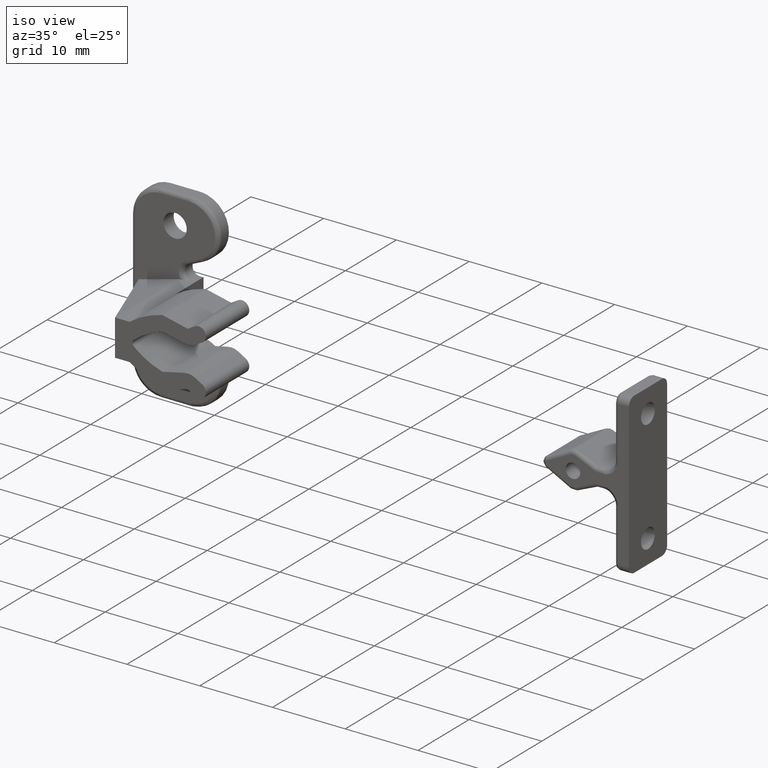
[diagram: clean part render]
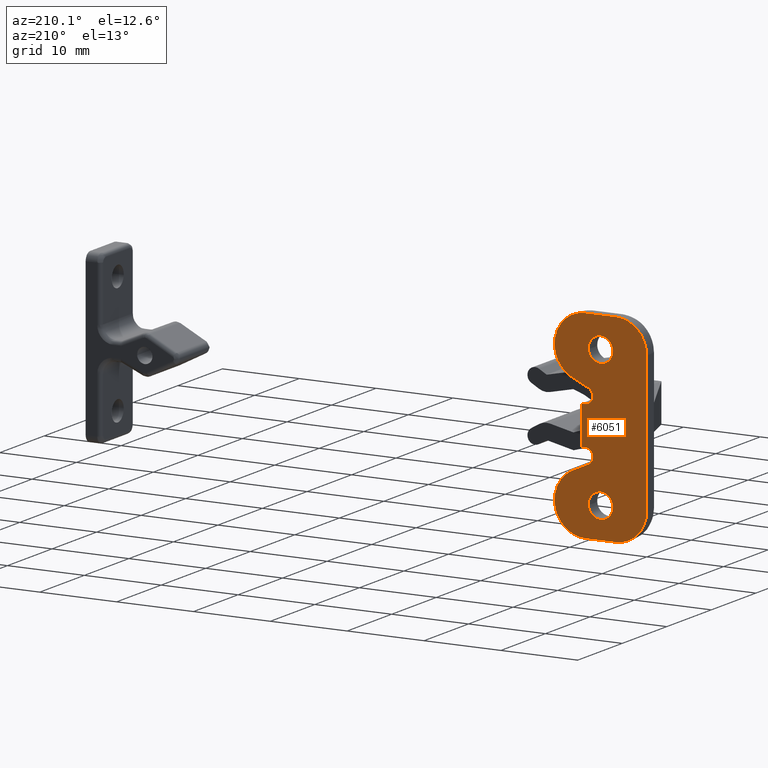
[diagram: tour spotlight — one face highlighted and labeled with its STEP entity id]
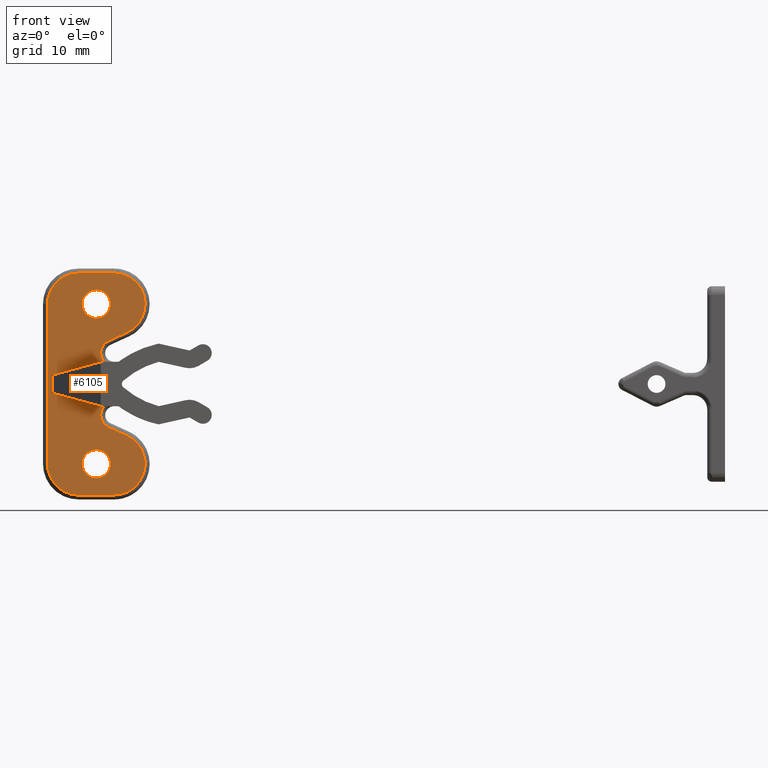
[diagram: tour spotlight — one face highlighted and labeled with its STEP entity id]
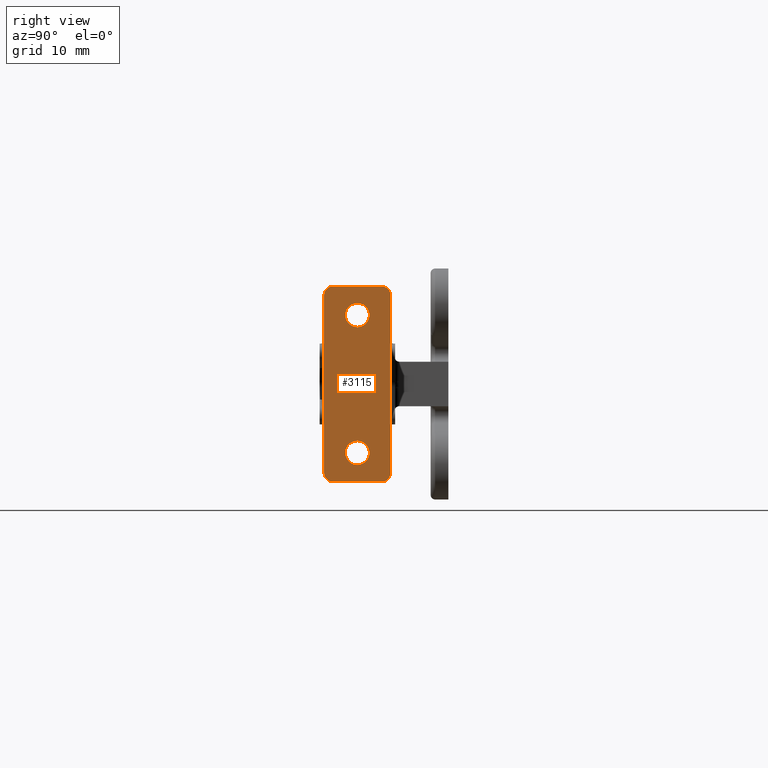
[diagram: tour spotlight — one face highlighted and labeled with its STEP entity id]
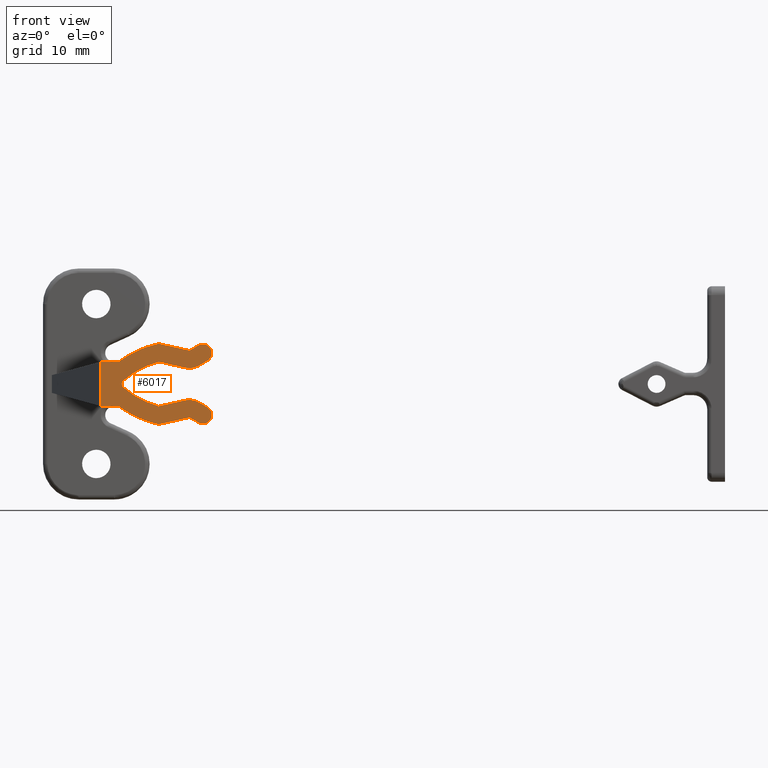
[diagram: tour spotlight — one face highlighted and labeled with its STEP entity id]
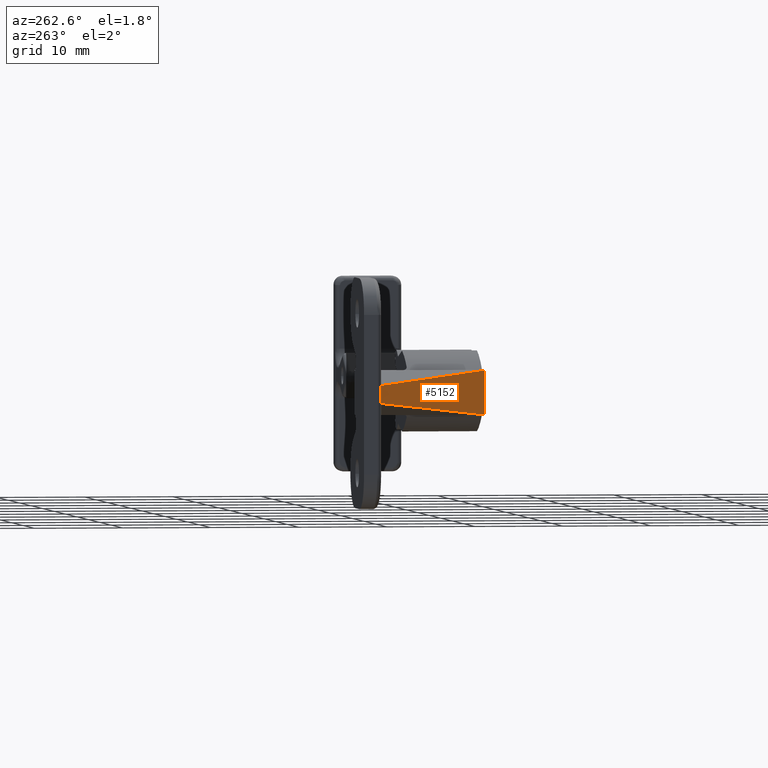
[diagram: tour spotlight — one face highlighted and labeled with its STEP entity id]
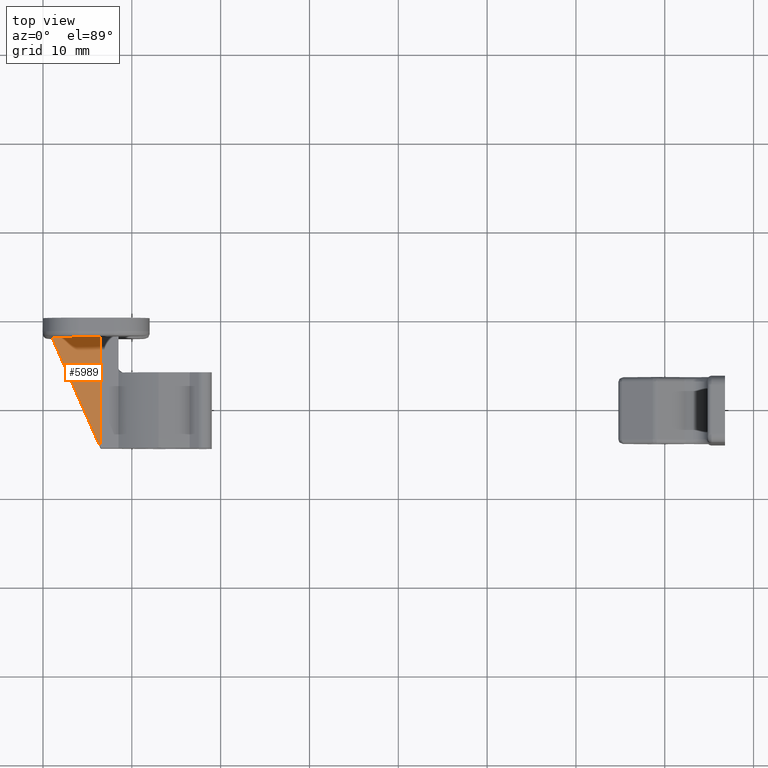
[diagram: tour spotlight — one face highlighted and labeled with its STEP entity id]
A machine part: a face-by-face anatomy tour. The part has 122 B-rep faces; the first image is the clean iso view, then the 6 largest visible faces are spotlighted one at a time (largest first), each with its STEP entity span.

Face 1 — auxiliary view, entity #6051. In plain terms, the highlighted face is a freeform B-spline surface patch.
Definition (entity closure, byte-faithful):
#3457=CARTESIAN_POINT('',(5.999999999999920,0.0,10.600002999999999));
#3458=VERTEX_POINT('',#3457);
#3459=CARTESIAN_POINT('',(4.404932266036830,9.714451E-017,9.125537553290524));
#3460=VERTEX_POINT('',#3459);
#3461=CARTESIAN_POINT('',(5.999999999999920,0.0,10.600002999999999));
#3462=CARTESIAN_POINT('',(4.520975213581129,0.0,10.600002999999999));
#3463=CARTESIAN_POINT('',(4.404932266036830,9.714451E-017,9.125537553290524));
#3471=(BOUNDED_CURVE()B_SPLINE_CURVE(2,(#3461,#3462,#3463),.UNSPECIFIED.,.F.,.U.)B_SPLINE_CURVE_WITH_KNOTS((3,3),(0.0,0.236331300605690),.UNSPECIFIED.)CURVE()GEOMETRIC_REPRESENTATION_ITEM()RATIONAL_B_SPLINE_CURVE((1.0,0.723120658636919,0.969723356115308))REPRESENTATION_ITEM(''));
#3472=EDGE_CURVE('',#3458,#3460,#3471,.T.);
#3474=CARTESIAN_POINT('',(7.595067733963011,9.714451E-017,8.874468446709475));
#3475=VERTEX_POINT('',#3474);
#3476=CARTESIAN_POINT('',(7.595067733963011,9.714451E-017,8.874468446709475));
#3477=CARTESIAN_POINT('',(7.599999999999921,0.0,8.937138828661171));
#3478=CARTESIAN_POINT('',(7.599999999999921,0.0,9.000003000000000));
#3479=CARTESIAN_POINT('',(7.599999999999921,0.0,10.600003000000001));
#3480=CARTESIAN_POINT('',(5.999999999999920,0.0,10.600002999999999));
#3488=(BOUNDED_CURVE()B_SPLINE_CURVE(2,(#3476,#3477,#3478,#3479,#3480),.UNSPECIFIED.,.F.,.U.)B_SPLINE_CURVE_WITH_KNOTS((3,2,3),(0.736331300605690,0.750000000000000,1.0),.UNSPECIFIED.)CURVE()GEOMETRIC_REPRESENTATION_ITEM()RATIONAL_B_SPLINE_CURVE((0.969723356115308,0.983986122549628,1.0,0.707106781186548,1.0))REPRESENTATION_ITEM(''));
#3489=EDGE_CURVE('',#3475,#3458,#3488,.T.);
#3556=CARTESIAN_POINT('',(5.999999999999920,0.0,7.400003000000000));
#3557=VERTEX_POINT('',#3556);
#3558=CARTESIAN_POINT('',(4.404932266036830,9.714451E-017,9.125537553290524));
#3559=CARTESIAN_POINT('',(4.399999999999920,0.0,9.062867171338830));
#3560=CARTESIAN_POINT('',(4.399999999999920,0.0,9.000003000000000));
#3561=CARTESIAN_POINT('',(4.399999999999920,0.0,7.400003000000000));
#3562=CARTESIAN_POINT('',(5.999999999999920,0.0,7.400003000000000));
#3570=(BOUNDED_CURVE()B_SPLINE_CURVE(2,(#3558,#3559,#3560,#3561,#3562),.UNSPECIFIED.,.F.,.U.)B_SPLINE_CURVE_WITH_KNOTS((3,2,3),(0.236331300605690,0.250000000000000,0.500000000000000),.UNSPECIFIED.)CURVE()GEOMETRIC_REPRESENTATION_ITEM()RATIONAL_B_SPLINE_CURVE((0.969723356115308,0.983986122549628,1.0,0.707106781186548,1.0))REPRESENTATION_ITEM(''));
#3571=EDGE_CURVE('',#3460,#3557,#3570,.T.);
#3605=CARTESIAN_POINT('',(5.999999999999920,0.0,7.400003000000000));
#3606=CARTESIAN_POINT('',(7.479024786418714,0.0,7.400002999999999));
#3607=CARTESIAN_POINT('',(7.595067733963011,9.714451E-017,8.874468446709475));
#3615=(BOUNDED_CURVE()B_SPLINE_CURVE(2,(#3605,#3606,#3607),.UNSPECIFIED.,.F.,.U.)B_SPLINE_CURVE_WITH_KNOTS((3,3),(0.500000000000000,0.736331300605690),.UNSPECIFIED.)CURVE()GEOMETRIC_REPRESENTATION_ITEM()RATIONAL_B_SPLINE_CURVE((1.0,0.723120658636919,0.969723356115308))REPRESENTATION_ITEM(''));
#3616=EDGE_CURVE('',#3557,#3475,#3615,.T.);
#3639=CARTESIAN_POINT('',(5.999999999999920,0.0,-7.400000000000000));
#3640=VERTEX_POINT('',#3639);
#3641=CARTESIAN_POINT('',(4.404932266036830,9.714451E-017,-8.874465446709476));
#3642=VERTEX_POINT('',#3641);
#3643=CARTESIAN_POINT('',(5.999999999999920,0.0,-7.400000000000000));
#3644=CARTESIAN_POINT('',(4.520975213581129,0.0,-7.400000000000001));
#3645=CARTESIAN_POINT('',(4.404932266036830,9.714451E-017,-8.874465446709476));
#3653=(BOUNDED_CURVE()B_SPLINE_CURVE(2,(#3643,#3644,#3645),.UNSPECIFIED.,.F.,.U.)B_SPLINE_CURVE_WITH_KNOTS((3,3),(0.0,0.236331300605690),.UNSPECIFIED.)CURVE()GEOMETRIC_REPRESENTATION_ITEM()RATIONAL_B_SPLINE_CURVE((1.0,0.723120658636919,0.969723356115308))REPRESENTATION_ITEM(''));
#3654=EDGE_CURVE('',#3640,#3642,#3653,.T.);
#3656=CARTESIAN_POINT('',(7.595067733963011,9.714451E-017,-9.125534553290525));
#3657=VERTEX_POINT('',#3656);
#3658=CARTESIAN_POINT('',(7.595067733963011,9.714451E-017,-9.125534553290525));
#3659=CARTESIAN_POINT('',(7.599999999999921,0.0,-9.062864171338829));
#3660=CARTESIAN_POINT('',(7.599999999999921,0.0,-9.0));
#3661=CARTESIAN_POINT('',(7.599999999999921,0.0,-7.400000000000000));
#3662=CARTESIAN_POINT('',(5.999999999999920,0.0,-7.400000000000000));
#3670=(BOUNDED_CURVE()B_SPLINE_CURVE(2,(#3658,#3659,#3660,#3661,#3662),.UNSPECIFIED.,.F.,.U.)B_SPLINE_CURVE_WITH_KNOTS((3,2,3),(0.736331300605690,0.750000000000000,1.0),.UNSPECIFIED.)CURVE()GEOMETRIC_REPRESENTATION_ITEM()RATIONAL_B_SPLINE_CURVE((0.969723356115308,0.983986122549628,1.0,0.707106781186548,1.0))REPRESENTATION_ITEM(''));
#3671=EDGE_CURVE('',#3657,#3640,#3670,.T.);
#3738=CARTESIAN_POINT('',(5.999999999999920,0.0,-10.600000000000000));
#3739=VERTEX_POINT('',#3738);
#3740=CARTESIAN_POINT('',(4.404932266036830,9.714451E-017,-8.874465446709476));
#3741=CARTESIAN_POINT('',(4.399999999999921,0.0,-8.937135828661171));
#3742=CARTESIAN_POINT('',(4.399999999999920,0.0,-9.0));
#3743=CARTESIAN_POINT('',(4.399999999999920,0.0,-10.599999999999998));
#3744=CARTESIAN_POINT('',(5.999999999999920,0.0,-10.600000000000000));
#3752=(BOUNDED_CURVE()B_SPLINE_CURVE(2,(#3740,#3741,#3742,#3743,#3744),.UNSPECIFIED.,.F.,.U.)B_SPLINE_CURVE_WITH_KNOTS((3,2,3),(0.236331300605690,0.250000000000000,0.500000000000000),.UNSPECIFIED.)CURVE()GEOMETRIC_REPRESENTATION_ITEM()RATIONAL_B_SPLINE_CURVE((0.969723356115308,0.983986122549628,1.0,0.707106781186548,1.0))REPRESENTATION_ITEM(''));
#3753=EDGE_CURVE('',#3642,#3739,#3752,.T.);
#3787=CARTESIAN_POINT('',(5.999999999999920,0.0,-10.600000000000000));
#3788=CARTESIAN_POINT('',(7.479024786418714,0.0,-10.600000000000000));
#3789=CARTESIAN_POINT('',(7.595067733963011,9.714451E-017,-9.125534553290525));
#3797=(BOUNDED_CURVE()B_SPLINE_CURVE(2,(#3787,#3788,#3789),.UNSPECIFIED.,.F.,.U.)B_SPLINE_CURVE_WITH_KNOTS((3,3),(0.500000000000000,0.736331300605690),.UNSPECIFIED.)CURVE()GEOMETRIC_REPRESENTATION_ITEM()RATIONAL_B_SPLINE_CURVE((1.0,0.723120658636919,0.969723356115308))REPRESENTATION_ITEM(''));
#3798=EDGE_CURVE('',#3739,#3657,#3797,.T.);
#4731=CARTESIAN_POINT('',(7.582269770819020,0.0,4.408571106534030));
#4732=VERTEX_POINT('',#4731);
#4739=CARTESIAN_POINT('',(8.0,0.0,2.500000000000000));
#4740=VERTEX_POINT('',#4739);
#4746=CARTESIAN_POINT('',(7.582269770819020,0.0,4.408571106534030));
#4747=CARTESIAN_POINT('',(6.851050530088288,0.0,4.072381259844708));
#4748=CARTESIAN_POINT('',(7.023124596856385,0.0,3.286190629922354));
#4749=CARTESIAN_POINT('',(7.195198663624483,0.0,2.500000000000000));
#4750=CARTESIAN_POINT('',(8.0,0.0,2.500000000000000));
#4758=(BOUNDED_CURVE()B_SPLINE_CURVE(2,(#4746,#4747,#4748,#4749,#4750),.UNSPECIFIED.,.F.,.U.)B_SPLINE_CURVE_WITH_KNOTS((3,2,3),(0.0,0.500000000000000,1.0),.UNSPECIFIED.)CURVE()GEOMETRIC_REPRESENTATION_ITEM()RATIONAL_B_SPLINE_CURVE((1.0,0.779040875075771,1.0,0.779040875075771,1.0))REPRESENTATION_ITEM(''));
#4759=EDGE_CURVE('',#4732,#4740,#4758,.T.);
#4769=CARTESIAN_POINT('',(9.666381923369229,0.0,5.363627964883530));
#4770=VERTEX_POINT('',#4769);
#4778=CARTESIAN_POINT('',(9.666381923369229,0.0,5.363627964883530));
#4779=CARTESIAN_POINT('',(7.582269770819020,0.0,4.408571106534030));
#4780=QUASI_UNIFORM_CURVE('',1,(#4778,#4779),.UNSPECIFIED.,.F.,.U.);
#4781=EDGE_CURVE('',#4770,#4732,#4780,.T.);
#4804=CARTESIAN_POINT('',(8.0,0.0,13.000003000000000));
#4805=VERTEX_POINT('',#4804);
#4813=CARTESIAN_POINT('',(9.666381923369231,0.0,5.363627964883525));
#4814=CARTESIAN_POINT('',(12.594804078702479,0.0,6.705594856899478));
#4815=CARTESIAN_POINT('',(11.908033240083350,0.0,9.852796355745074));
#4816=CARTESIAN_POINT('',(11.221262401464232,0.0,12.999997854590667));
#4817=CARTESIAN_POINT('',(8.0,0.0,13.000003000000000));
#4825=(BOUNDED_CURVE()B_SPLINE_CURVE(2,(#4813,#4814,#4815,#4816,#4817),.UNSPECIFIED.,.F.,.U.)B_SPLINE_CURVE_WITH_KNOTS((3,2,3),(0.0,0.500000000000000,1.0),.UNSPECIFIED.)CURVE()GEOMETRIC_REPRESENTATION_ITEM()RATIONAL_B_SPLINE_CURVE((1.0,0.778845570356530,1.0,0.778845570356530,1.0))REPRESENTATION_ITEM(''));
#4826=EDGE_CURVE('',#4770,#4805,#4825,.T.);
#4836=CARTESIAN_POINT('',(3.999999790560405,0.0,13.000003000000000));
#4837=VERTEX_POINT('',#4836);
#4845=CARTESIAN_POINT('',(3.999999790560405,0.0,13.000003000000000));
#4846=CARTESIAN_POINT('',(8.0,0.0,13.000003000000000));
#4847=QUASI_UNIFORM_CURVE('',1,(#4845,#4846),.UNSPECIFIED.,.F.,.U.);
#4848=EDGE_CURVE('',#4837,#4805,#4847,.T.);
#4867=CARTESIAN_POINT('',(0.0,0.0,9.000003000000000));
#4868=VERTEX_POINT('',#4867);
#4876=CARTESIAN_POINT('',(3.999999790560406,0.0,13.000002999999991));
#4877=CARTESIAN_POINT('',(-8.500145E-014,0.0,13.000002790560499));
#4878=CARTESIAN_POINT('',(0.0,0.0,9.000003000000000));
#4886=(BOUNDED_CURVE()B_SPLINE_CURVE(2,(#4876,#4877,#4878),.UNSPECIFIED.,.F.,.U.)CURVE()GEOMETRIC_REPRESENTATION_ITEM()QUASI_UNIFORM_CURVE()RATIONAL_B_SPLINE_CURVE((1.0,0.707106799698559,1.0))REPRESENTATION_ITEM(''));
#4887=EDGE_CURVE('',#4837,#4868,#4886,.T.);
#4897=CARTESIAN_POINT('',(-7.016610E-014,0.0,-9.000000349065859));
#4898=VERTEX_POINT('',#4897);
#4906=CARTESIAN_POINT('',(-7.016610E-014,0.0,-9.000000349065859));
#4907=CARTESIAN_POINT('',(0.0,0.0,9.000003000000000));
#4908=QUASI_UNIFORM_CURVE('',1,(#4906,#4907),.UNSPECIFIED.,.F.,.U.);
#4909=EDGE_CURVE('',#4898,#4868,#4908,.T.);
#4928=CARTESIAN_POINT('',(3.999999999999915,0.0,-13.0));
#4929=VERTEX_POINT('',#4928);
#4937=CARTESIAN_POINT('',(-7.025630E-014,0.0,-9.000000349065855));
#4938=CARTESIAN_POINT('',(0.000000349065755,0.0,-13.0));
#4939=CARTESIAN_POINT('',(3.999999999999915,0.0,-13.0));
#4947=(BOUNDED_CURVE()B_SPLINE_CURVE(2,(#4937,#4938,#4939),.UNSPECIFIED.,.F.,.U.)CURVE()GEOMETRIC_REPRESENTATION_ITEM()QUASI_UNIFORM_CURVE()RATIONAL_B_SPLINE_CURVE((1.0,0.707106812039901,1.0))REPRESENTATION_ITEM(''));
#4948=EDGE_CURVE('',#4898,#4929,#4947,.T.);
#4958=CARTESIAN_POINT('',(7.999999790560401,0.0,-13.0));
#4959=VERTEX_POINT('',#4958);
#4967=CARTESIAN_POINT('',(7.999999790560401,0.0,-13.0));
#4968=CARTESIAN_POINT('',(3.999999999999915,0.0,-13.0));
#4969=QUASI_UNIFORM_CURVE('',1,(#4967,#4968),.UNSPECIFIED.,.F.,.U.);
#4970=EDGE_CURVE('',#4959,#4929,#4969,.T.);
#4993=CARTESIAN_POINT('',(9.666381999999999,0.0,-5.363636000000000));
#4994=VERTEX_POINT('',#4993);
#5002=CARTESIAN_POINT('',(7.999999790560401,0.0,-13.0));
#5003=CARTESIAN_POINT('',(11.221262209132123,0.0,-13.000000447138650));
#5004=CARTESIAN_POINT('',(11.908033839191701,0.0,-9.852800409656304));
#5005=CARTESIAN_POINT('',(12.594805469251263,0.0,-6.705600372173956));
#5006=CARTESIAN_POINT('',(9.666381999999999,0.0,-5.363636000000000));
#5014=(BOUNDED_CURVE()B_SPLINE_CURVE(2,(#5002,#5003,#5004,#5005,#5006),.UNSPECIFIED.,.F.,.U.)B_SPLINE_CURVE_WITH_KNOTS((3,2,3),(0.0,0.500000000000000,1.0),.UNSPECIFIED.)CURVE()GEOMETRIC_REPRESENTATION_ITEM()RATIONAL_B_SPLINE_CURVE((1.0,0.778845188435621,1.0,0.778845188435621,1.0))REPRESENTATION_ITEM(''));
#5015=EDGE_CURVE('',#4959,#4994,#5014,.T.);
#5025=CARTESIAN_POINT('',(7.583402008497890,0.0,-4.409090816957516));
#5026=VERTEX_POINT('',#5025);
#5034=CARTESIAN_POINT('',(7.583402008497890,0.0,-4.409090816957516));
#5035=CARTESIAN_POINT('',(9.666381999999999,0.0,-5.363636000000000));
#5036=QUASI_UNIFORM_CURVE('',1,(#5034,#5035),.UNSPECIFIED.,.F.,.U.);
#5037=EDGE_CURVE('',#5026,#4994,#5036,.T.);
#5060=CARTESIAN_POINT('',(8.0,0.0,-2.500000000000000));
#5061=VERTEX_POINT('',#5060);
#5069=CARTESIAN_POINT('',(8.0,0.0,-2.500000000000000));
#5070=CARTESIAN_POINT('',(7.194685349943649,0.0,-2.500000000000000));
#5071=CARTESIAN_POINT('',(7.022991602656998,0.0,-3.286799175608397));
#5072=CARTESIAN_POINT('',(6.851297855370348,0.0,-4.073598351216793));
#5073=CARTESIAN_POINT('',(7.583402008497890,0.0,-4.409090816957516));
#5081=(BOUNDED_CURVE()B_SPLINE_CURVE(2,(#5069,#5070,#5071,#5072,#5073),.UNSPECIFIED.,.F.,.U.)B_SPLINE_CURVE_WITH_KNOTS((3,2,3),(0.0,0.500000000000000,1.0),.UNSPECIFIED.)CURVE()GEOMETRIC_REPRESENTATION_ITEM()RATIONAL_B_SPLINE_CURVE((1.0,0.778845563764603,1.0,0.778845563764603,1.0))REPRESENTATION_ITEM(''));
#5082=EDGE_CURVE('',#5061,#5026,#5081,.T.);
#5092=CARTESIAN_POINT('',(8.500000000000000,0.0,2.500000000000000));
#5093=VERTEX_POINT('',#5092);
#5102=CARTESIAN_POINT('',(8.500000000000000,0.0,-2.500000000000000));
#5103=VERTEX_POINT('',#5102);
#5109=CARTESIAN_POINT('',(8.500000000000000,0.0,2.500000000000000));
#5110=CARTESIAN_POINT('',(8.500000000000000,0.0,-2.500000000000000));
#5111=QUASI_UNIFORM_CURVE('',1,(#5109,#5110),.UNSPECIFIED.,.F.,.U.);
#5112=EDGE_CURVE('',#5093,#5103,#5111,.T.);
#5166=CARTESIAN_POINT('',(8.0,0.0,2.500000000000000));
#5167=CARTESIAN_POINT('',(8.500000000000000,0.0,2.500000000000000));
#5168=QUASI_UNIFORM_CURVE('',1,(#5166,#5167),.UNSPECIFIED.,.F.,.U.);
#5169=EDGE_CURVE('',#4740,#5093,#5168,.T.);
#5945=CARTESIAN_POINT('',(8.500000000000000,0.0,-2.500000000000000));
#5946=CARTESIAN_POINT('',(8.0,0.0,-2.500000000000000));
#5947=QUASI_UNIFORM_CURVE('',1,(#5945,#5946),.UNSPECIFIED.,.F.,.U.);
#5948=EDGE_CURVE('',#5103,#5061,#5947,.T.);
#6018=CARTESIAN_POINT('',(-0.599284004194391,0.0,-14.298700099456950));
#6019=CARTESIAN_POINT('',(12.596962552923159,0.0,-14.298700099456950));
#6020=CARTESIAN_POINT('',(-0.599284004194391,0.0,14.298703796831370));
#6021=CARTESIAN_POINT('',(12.596962552923159,0.0,14.298703796831370));
#6022=B_SPLINE_SURFACE_WITH_KNOTS('',1,1,((#6018,#6020),(#6019,#6021)),.UNSPECIFIED.,.F.,.F.,.U.,(2,2),(2,2),(0.0,13.196246557117551),(0.0,28.597403896288320),.UNSPECIFIED.);
#6023=ORIENTED_EDGE('',*,*,#5112,.T.);
#6024=ORIENTED_EDGE('',*,*,#5948,.T.);
#6025=ORIENTED_EDGE('',*,*,#5082,.T.);
#6026=ORIENTED_EDGE('',*,*,#5037,.T.);
#6027=ORIENTED_EDGE('',*,*,#5015,.F.);
#6028=ORIENTED_EDGE('',*,*,#4970,.T.);
#6029=ORIENTED_EDGE('',*,*,#4948,.F.);
#6030=ORIENTED_EDGE('',*,*,#4909,.T.);
#6031=ORIENTED_EDGE('',*,*,#4887,.F.);
#6032=ORIENTED_EDGE('',*,*,#4848,.T.);
#6033=ORIENTED_EDGE('',*,*,#4826,.F.);
#6034=ORIENTED_EDGE('',*,*,#4781,.T.);
#6035=ORIENTED_EDGE('',*,*,#4759,.T.);
#6036=ORIENTED_EDGE('',*,*,#5169,.T.);
#6037=EDGE_LOOP('',(#6023,#6024,#6025,#6026,#6027,#6028,#6029,#6030,#6031,#6032,#6033,#6034,#6035,#6036));
#6038=FACE_OUTER_BOUND('',#6037,.T.);
#6039=ORIENTED_EDGE('',*,*,#3798,.T.);
#6040=ORIENTED_EDGE('',*,*,#3671,.T.);
#6041=ORIENTED_EDGE('',*,*,#3654,.T.);
#6042=ORIENTED_EDGE('',*,*,#3753,.T.);
#6043=EDGE_LOOP('',(#6039,#6040,#6041,#6042));
#6044=FACE_BOUND('',#6043,.T.);
#6045=ORIENTED_EDGE('',*,*,#3616,.T.);
#6046=ORIENTED_EDGE('',*,*,#3489,.T.);
#6047=ORIENTED_EDGE('',*,*,#3472,.T.);
#6048=ORIENTED_EDGE('',*,*,#3571,.T.);
#6049=EDGE_LOOP('',(#6045,#6046,#6047,#6048));
#6050=FACE_BOUND('',#6049,.T.);
#6051=ADVANCED_FACE('',(#6038,#6044,#6050),#6022,.F.);

Face 2 — front view, entity #6105. In plain terms, the highlighted face is a freeform B-spline surface patch.
Definition (entity closure, byte-faithful):
#3491=CARTESIAN_POINT('',(7.595067733963011,-2.000000000000225,8.874468446709475));
#3492=VERTEX_POINT('',#3491);
#3498=CARTESIAN_POINT('',(5.999999999999920,-2.000000000000225,10.600002999999999));
#3499=VERTEX_POINT('',#3498);
#3500=CARTESIAN_POINT('',(7.595067733963010,-2.000000000000225,8.874468446709475));
#3501=CARTESIAN_POINT('',(7.599999999999921,-2.000000000000225,8.937138828661171));
#3502=CARTESIAN_POINT('',(7.599999999999921,-2.000000000000225,9.000003000000000));
#3503=CARTESIAN_POINT('',(7.599999999999921,-2.000000000000225,10.600003000000001));
#3504=CARTESIAN_POINT('',(5.999999999999920,-2.000000000000225,10.600002999999999));
#3512=(BOUNDED_CURVE()B_SPLINE_CURVE(2,(#3500,#3501,#3502,#3503,#3504),.UNSPECIFIED.,.F.,.U.)B_SPLINE_CURVE_WITH_KNOTS((3,2,3),(0.736331300605690,0.750000000000000,1.0),.UNSPECIFIED.)CURVE()GEOMETRIC_REPRESENTATION_ITEM()RATIONAL_B_SPLINE_CURVE((0.969723356115308,0.983986122549628,1.0,0.707106781186548,1.0))REPRESENTATION_ITEM(''));
#3513=EDGE_CURVE('',#3492,#3499,#3512,.T.);
#3515=CARTESIAN_POINT('',(4.404932266036830,-2.000000000000225,9.125537553290524));
#3516=VERTEX_POINT('',#3515);
#3517=CARTESIAN_POINT('',(5.999999999999920,-2.000000000000225,10.600002999999999));
#3518=CARTESIAN_POINT('',(4.520975213581126,-2.000000000000224,10.600003000000001));
#3519=CARTESIAN_POINT('',(4.404932266036830,-2.000000000000225,9.125537553290524));
#3527=(BOUNDED_CURVE()B_SPLINE_CURVE(2,(#3517,#3518,#3519),.UNSPECIFIED.,.F.,.U.)B_SPLINE_CURVE_WITH_KNOTS((3,3),(0.0,0.236331300605690),.UNSPECIFIED.)CURVE()GEOMETRIC_REPRESENTATION_ITEM()RATIONAL_B_SPLINE_CURVE((1.0,0.723120658636919,0.969723356115308))REPRESENTATION_ITEM(''));
#3528=EDGE_CURVE('',#3499,#3516,#3527,.T.);
#3574=CARTESIAN_POINT('',(5.999999999999920,-2.000000000000225,7.400003000000000));
#3575=VERTEX_POINT('',#3574);
#3576=CARTESIAN_POINT('',(4.404932266036830,-2.000000000000225,9.125537553290524));
#3577=CARTESIAN_POINT('',(4.399999999999920,-2.000000000000225,9.062867171338827));
#3578=CARTESIAN_POINT('',(4.399999999999920,-2.000000000000225,9.000003000000000));
#3579=CARTESIAN_POINT('',(4.399999999999920,-2.000000000000225,7.400003000000000));
#3580=CARTESIAN_POINT('',(5.999999999999920,-2.000000000000225,7.400003000000000));
#3588=(BOUNDED_CURVE()B_SPLINE_CURVE(2,(#3576,#3577,#3578,#3579,#3580),.UNSPECIFIED.,.F.,.U.)B_SPLINE_CURVE_WITH_KNOTS((3,2,3),(0.236331300605690,0.250000000000000,0.500000000000000),.UNSPECIFIED.)CURVE()GEOMETRIC_REPRESENTATION_ITEM()RATIONAL_B_SPLINE_CURVE((0.969723356115308,0.983986122549628,1.0,0.707106781186548,1.0))REPRESENTATION_ITEM(''));
#3589=EDGE_CURVE('',#3516,#3575,#3588,.T.);
#3591=CARTESIAN_POINT('',(5.999999999999920,-2.000000000000225,7.400003000000000));
#3592=CARTESIAN_POINT('',(7.479024786418714,-2.000000000000224,7.400002999999999));
#3593=CARTESIAN_POINT('',(7.595067733963011,-2.000000000000225,8.874468446709475));
#3601=(BOUNDED_CURVE()B_SPLINE_CURVE(2,(#3591,#3592,#3593),.UNSPECIFIED.,.F.,.U.)B_SPLINE_CURVE_WITH_KNOTS((3,3),(0.500000000000000,0.736331300605690),.UNSPECIFIED.)CURVE()GEOMETRIC_REPRESENTATION_ITEM()RATIONAL_B_SPLINE_CURVE((1.0,0.723120658636919,0.969723356115308))REPRESENTATION_ITEM(''));
#3602=EDGE_CURVE('',#3575,#3492,#3601,.T.);
#3673=CARTESIAN_POINT('',(7.595067733963011,-2.000000000000225,-9.125534553290525));
#3674=VERTEX_POINT('',#3673);
#3680=CARTESIAN_POINT('',(5.999999999999920,-2.000000000000225,-7.400000000000000));
#3681=VERTEX_POINT('',#3680);
#3682=CARTESIAN_POINT('',(7.595067733963011,-2.000000000000225,-9.125534553290525));
#3683=CARTESIAN_POINT('',(7.599999999999921,-2.000000000000226,-9.062864171338829));
#3684=CARTESIAN_POINT('',(7.599999999999921,-2.000000000000225,-9.0));
#3685=CARTESIAN_POINT('',(7.599999999999921,-2.000000000000225,-7.400000000000000));
#3686=CARTESIAN_POINT('',(5.999999999999920,-2.000000000000225,-7.400000000000000));
#3694=(BOUNDED_CURVE()B_SPLINE_CURVE(2,(#3682,#3683,#3684,#3685,#3686),.UNSPECIFIED.,.F.,.U.)B_SPLINE_CURVE_WITH_KNOTS((3,2,3),(0.736331300605690,0.750000000000000,1.0),.UNSPECIFIED.)CURVE()GEOMETRIC_REPRESENTATION_ITEM()RATIONAL_B_SPLINE_CURVE((0.969723356115308,0.983986122549628,1.0,0.707106781186548,1.0))REPRESENTATION_ITEM(''));
#3695=EDGE_CURVE('',#3674,#3681,#3694,.T.);
#3697=CARTESIAN_POINT('',(4.404932266036830,-2.000000000000225,-8.874465446709476));
#3698=VERTEX_POINT('',#3697);
#3699=CARTESIAN_POINT('',(5.999999999999920,-2.000000000000225,-7.400000000000000));
#3700=CARTESIAN_POINT('',(4.520975213581128,-2.000000000000226,-7.400000000000000));
#3701=CARTESIAN_POINT('',(4.404932266036830,-2.000000000000225,-8.874465446709476));
#3709=(BOUNDED_CURVE()B_SPLINE_CURVE(2,(#3699,#3700,#3701),.UNSPECIFIED.,.F.,.U.)B_SPLINE_CURVE_WITH_KNOTS((3,3),(0.0,0.236331300605690),.UNSPECIFIED.)CURVE()GEOMETRIC_REPRESENTATION_ITEM()RATIONAL_B_SPLINE_CURVE((1.0,0.723120658636920,0.969723356115308))REPRESENTATION_ITEM(''));
#3710=EDGE_CURVE('',#3681,#3698,#3709,.T.);
#3756=CARTESIAN_POINT('',(5.999999999999920,-2.000000000000225,-10.600000000000000));
#3757=VERTEX_POINT('',#3756);
#3758=CARTESIAN_POINT('',(4.404932266036830,-2.000000000000226,-8.874465446709476));
#3759=CARTESIAN_POINT('',(4.399999999999920,-2.000000000000226,-8.937135828661171));
#3760=CARTESIAN_POINT('',(4.399999999999920,-2.000000000000225,-9.0));
#3761=CARTESIAN_POINT('',(4.399999999999920,-2.000000000000225,-10.599999999999998));
#3762=CARTESIAN_POINT('',(5.999999999999920,-2.000000000000225,-10.600000000000000));
#3770=(BOUNDED_CURVE()B_SPLINE_CURVE(2,(#3758,#3759,#3760,#3761,#3762),.UNSPECIFIED.,.F.,.U.)B_SPLINE_CURVE_WITH_KNOTS((3,2,3),(0.236331300605690,0.250000000000000,0.500000000000000),.UNSPECIFIED.)CURVE()GEOMETRIC_REPRESENTATION_ITEM()RATIONAL_B_SPLINE_CURVE((0.969723356115308,0.983986122549628,1.0,0.707106781186548,1.0))REPRESENTATION_ITEM(''));
#3771=EDGE_CURVE('',#3698,#3757,#3770,.T.);
#3773=CARTESIAN_POINT('',(5.999999999999920,-2.000000000000225,-10.600000000000000));
#3774=CARTESIAN_POINT('',(7.479024786418714,-2.000000000000224,-10.600000000000000));
#3775=CARTESIAN_POINT('',(7.595067733963011,-2.000000000000225,-9.125534553290525));
#3783=(BOUNDED_CURVE()B_SPLINE_CURVE(2,(#3773,#3774,#3775),.UNSPECIFIED.,.F.,.U.)B_SPLINE_CURVE_WITH_KNOTS((3,3),(0.500000000000000,0.736331300605690),.UNSPECIFIED.)CURVE()GEOMETRIC_REPRESENTATION_ITEM()RATIONAL_B_SPLINE_CURVE((1.0,0.723120658636919,0.969723356115308))REPRESENTATION_ITEM(''));
#3784=EDGE_CURVE('',#3757,#3674,#3783,.T.);
#3826=CARTESIAN_POINT('',(6.881966011250020,-2.000000000000225,-2.500000000000000));
#3827=VERTEX_POINT('',#3826);
#3843=CARTESIAN_POINT('',(7.375101395430650,-2.000000000000200,-4.863639754711230));
#3844=VERTEX_POINT('',#3843);
#3845=CARTESIAN_POINT('',(7.375101395430650,-2.000000000000200,-4.863639754711230));
#3846=CARTESIAN_POINT('',(6.686351727644520,-2.000000000000205,-4.548014026402681));
#3847=CARTESIAN_POINT('',(6.531617037974458,-2.000000000000212,-3.806357524619183));
#3848=CARTESIAN_POINT('',(6.376882348304394,-2.000000000000220,-3.064701022835684));
#3849=CARTESIAN_POINT('',(6.881966011250020,-2.000000000000225,-2.500000000000000));
#3857=(BOUNDED_CURVE()B_SPLINE_CURVE(2,(#3845,#3846,#3847,#3848,#3849),.UNSPECIFIED.,.F.,.U.)B_SPLINE_CURVE_WITH_KNOTS((3,2,3),(0.0,0.500000000000000,1.0),.UNSPECIFIED.)CURVE()GEOMETRIC_REPRESENTATION_ITEM()RATIONAL_B_SPLINE_CURVE((1.0,0.892604851725278,1.0,0.892604851725278,1.0))REPRESENTATION_ITEM(''));
#3858=EDGE_CURVE('',#3844,#3827,#3857,.T.);
#3907=CARTESIAN_POINT('',(9.458084635666950,-2.000000000000200,-5.818178321270710));
#3908=VERTEX_POINT('',#3907);
#3930=CARTESIAN_POINT('',(9.458084635666950,-2.000000000000200,-5.818178321270710));
#3931=CARTESIAN_POINT('',(7.375101395430650,-2.000000000000200,-4.863639754711230));
#3932=QUASI_UNIFORM_CURVE('',1,(#3930,#3931),.UNSPECIFIED.,.F.,.U.);
#3933=EDGE_CURVE('',#3908,#3844,#3932,.T.);
#3961=CARTESIAN_POINT('',(7.999999816740339,-2.000000000000200,-12.500000000000000));
#3962=VERTEX_POINT('',#3961);
#3994=CARTESIAN_POINT('',(7.999999816740339,-2.000000000000200,-12.499999999999989));
#3995=CARTESIAN_POINT('',(10.818604945920075,-2.000000000000199,-12.500000147581886));
#3996=CARTESIAN_POINT('',(11.419530348479491,-2.000000000000200,-9.746198496264720));
#3997=CARTESIAN_POINT('',(12.020455751038909,-2.000000000000199,-6.992396844947554));
#3998=CARTESIAN_POINT('',(9.458084635666950,-2.000000000000200,-5.818178321270710));
#4006=(BOUNDED_CURVE()B_SPLINE_CURVE(2,(#3994,#3995,#3996,#3997,#3998),.UNSPECIFIED.,.F.,.U.)B_SPLINE_CURVE_WITH_KNOTS((3,2,3),(0.0,0.500000000000000,1.0),.UNSPECIFIED.)CURVE()GEOMETRIC_REPRESENTATION_ITEM()RATIONAL_B_SPLINE_CURVE((1.0,0.778845144815473,1.0,0.778845144815473,1.0))REPRESENTATION_ITEM(''));
#4007=EDGE_CURVE('',#3962,#3908,#4006,.T.);
#4026=CARTESIAN_POINT('',(3.999999999999915,-2.000000000000200,-12.500000000000000));
#4027=VERTEX_POINT('',#4026);
#4049=CARTESIAN_POINT('',(3.999999999999915,-2.000000000000200,-12.500000000000000));
#4050=CARTESIAN_POINT('',(7.999999816740339,-2.000000000000200,-12.500000000000000));
#4051=QUASI_UNIFORM_CURVE('',1,(#4049,#4050),.UNSPECIFIED.,.F.,.U.);
#4052=EDGE_CURVE('',#4027,#3962,#4051,.T.);
#4074=CARTESIAN_POINT('',(0.500000000000000,-2.000000000000200,-9.000000305432630));
#4075=VERTEX_POINT('',#4074);
#4105=CARTESIAN_POINT('',(0.500000000000000,-2.000000000000200,-9.000000305432630));
#4106=CARTESIAN_POINT('',(0.500000305432531,-2.000000000000200,-12.500000000000000));
#4107=CARTESIAN_POINT('',(3.999999999999915,-2.000000000000200,-12.500000000000000));
#4115=(BOUNDED_CURVE()B_SPLINE_CURVE(2,(#4105,#4106,#4107),.UNSPECIFIED.,.F.,.U.)CURVE()GEOMETRIC_REPRESENTATION_ITEM()QUASI_UNIFORM_CURVE()RATIONAL_B_SPLINE_CURVE((1.0,0.707106812039902,1.0))REPRESENTATION_ITEM(''));
#4116=EDGE_CURVE('',#4075,#4027,#4115,.T.);
#4135=CARTESIAN_POINT('',(0.499999999999915,-2.000000000000200,9.000003000000000));
#4136=VERTEX_POINT('',#4135);
#4158=CARTESIAN_POINT('',(0.499999999999915,-2.000000000000200,9.000003000000000));
#4159=CARTESIAN_POINT('',(0.500000000000000,-2.000000000000200,-9.000000305432630));
#4160=QUASI_UNIFORM_CURVE('',1,(#4158,#4159),.UNSPECIFIED.,.F.,.U.);
#4161=EDGE_CURVE('',#4136,#4075,#4160,.T.);
#4183=CARTESIAN_POINT('',(3.999999816740345,-2.000000000000200,12.500003000000000));
#4184=VERTEX_POINT('',#4183);
#4214=CARTESIAN_POINT('',(3.999999816740346,-2.000000000000200,12.500003000000000));
#4215=CARTESIAN_POINT('',(0.499999999999916,-2.000000000000200,12.500002816740434));
#4216=CARTESIAN_POINT('',(0.499999999999915,-2.000000000000200,9.000003000000000));
#4224=(BOUNDED_CURVE()B_SPLINE_CURVE(2,(#4214,#4215,#4216),.UNSPECIFIED.,.F.,.U.)CURVE()GEOMETRIC_REPRESENTATION_ITEM()QUASI_UNIFORM_CURVE()RATIONAL_B_SPLINE_CURVE((1.0,0.707106799698559,1.0))REPRESENTATION_ITEM(''));
#4225=EDGE_CURVE('',#4184,#4136,#4224,.T.);
#4244=CARTESIAN_POINT('',(8.0,-2.000000000000200,12.500002999998941));
#4245=VERTEX_POINT('',#4244);
#4267=CARTESIAN_POINT('',(8.0,-2.000000000000200,12.500002999998941));
#4268=CARTESIAN_POINT('',(3.999999816740345,-2.000000000000200,12.500003000000000));
#4269=QUASI_UNIFORM_CURVE('',1,(#4267,#4268),.UNSPECIFIED.,.F.,.U.);
#4270=EDGE_CURVE('',#4245,#4184,#4269,.T.);
#4298=CARTESIAN_POINT('',(9.458083624988440,-2.000000000000200,5.818173692937010));
#4299=VERTEX_POINT('',#4298);
#4331=CARTESIAN_POINT('',(9.458083624988442,-2.000000000000200,5.818173692937005));
#4332=CARTESIAN_POINT('',(12.020453158990366,-2.000000000000200,6.992394781978065));
#4333=CARTESIAN_POINT('',(11.419528959637880,-2.000000000000200,9.746196318284298));
#4334=CARTESIAN_POINT('',(10.818604760285401,-2.000000000000200,12.499997854590534));
#4335=CARTESIAN_POINT('',(8.0,-2.000000000000200,12.500002999998930));
#4343=(BOUNDED_CURVE()B_SPLINE_CURVE(2,(#4331,#4332,#4333,#4334,#4335),.UNSPECIFIED.,.F.,.U.)B_SPLINE_CURVE_WITH_KNOTS((3,2,3),(0.0,0.500000000000000,1.0),.UNSPECIFIED.)CURVE()GEOMETRIC_REPRESENTATION_ITEM()RATIONAL_B_SPLINE_CURVE((1.0,0.778845605665444,1.0,0.778845605665444,1.0))REPRESENTATION_ITEM(''));
#4344=EDGE_CURVE('',#4299,#4245,#4343,.T.);
#4363=CARTESIAN_POINT('',(7.373971472438230,-2.000000000000200,4.863116834587510));
#4364=VERTEX_POINT('',#4363);
#4386=CARTESIAN_POINT('',(7.373971472438230,-2.000000000000200,4.863116834587510));
#4387=CARTESIAN_POINT('',(9.458083624988440,-2.000000000000200,5.818173692937010));
#4388=QUASI_UNIFORM_CURVE('',1,(#4386,#4387),.UNSPECIFIED.,.F.,.U.);
#4389=EDGE_CURVE('',#4364,#4299,#4388,.T.);
#4419=CARTESIAN_POINT('',(6.881966011250020,-2.000000000000225,2.500000000000000));
#4420=VERTEX_POINT('',#4419);
#4450=CARTESIAN_POINT('',(6.881966011250020,-2.000000000000225,2.500000000000000));
#4451=CARTESIAN_POINT('',(6.377143067907606,-2.000000000000199,3.064409208957719));
#4452=CARTESIAN_POINT('',(6.531490830301206,-2.000000000000200,3.805746330330488));
#4453=CARTESIAN_POINT('',(6.685838592694807,-2.000000000000199,4.547083451703259));
#4454=CARTESIAN_POINT('',(7.373971472438230,-2.000000000000200,4.863116834587510));
#4462=(BOUNDED_CURVE()B_SPLINE_CURVE(2,(#4450,#4451,#4452,#4453,#4454),.UNSPECIFIED.,.F.,.U.)B_SPLINE_CURVE_WITH_KNOTS((3,2,3),(0.0,0.500000000000000,1.0),.UNSPECIFIED.)CURVE()GEOMETRIC_REPRESENTATION_ITEM()RATIONAL_B_SPLINE_CURVE((1.0,0.892698385568374,1.0,0.892698385568374,1.0))REPRESENTATION_ITEM(''));
#4463=EDGE_CURVE('',#4420,#4364,#4462,.T.);
#5122=CARTESIAN_POINT('',(1.0,-2.000000000000200,1.000003000000026));
#5123=VERTEX_POINT('',#5122);
#5124=CARTESIAN_POINT('',(1.0,-2.000000000000200,-1.0));
#5125=VERTEX_POINT('',#5124);
#5126=CARTESIAN_POINT('',(1.0,-2.000000000000200,1.000003000000026));
#5127=CARTESIAN_POINT('',(1.0,-2.000000000000200,-1.0));
#5128=QUASI_UNIFORM_CURVE('',1,(#5126,#5127),.UNSPECIFIED.,.F.,.U.);
#5129=EDGE_CURVE('',#5123,#5125,#5128,.T.);
#5173=CARTESIAN_POINT('',(6.500000000000000,-2.000000000000225,2.500000000000000));
#5174=VERTEX_POINT('',#5173);
#5175=CARTESIAN_POINT('',(6.500000000000000,-2.000000000000225,2.500000000000000));
#5176=CARTESIAN_POINT('',(6.881966011250020,-2.000000000000225,2.500000000000000));
#5177=QUASI_UNIFORM_CURVE('',1,(#5175,#5176),.UNSPECIFIED.,.F.,.U.);
#5178=EDGE_CURVE('',#5174,#4420,#5177,.T.);
#5931=CARTESIAN_POINT('',(6.500000000000000,-2.000000000000225,-2.500000000000000));
#5932=VERTEX_POINT('',#5931);
#5938=CARTESIAN_POINT('',(6.881966011250020,-2.000000000000225,-2.500000000000000));
#5939=CARTESIAN_POINT('',(6.500000000000000,-2.000000000000225,-2.500000000000000));
#5940=QUASI_UNIFORM_CURVE('',1,(#5938,#5939),.UNSPECIFIED.,.F.,.U.);
#5941=EDGE_CURVE('',#3827,#5932,#5940,.T.);
#5967=CARTESIAN_POINT('',(1.0,-2.000000000000200,-1.0));
#5968=CARTESIAN_POINT('',(6.500000000000000,-2.000000000000225,-2.500000000000000));
#5969=QUASI_UNIFORM_CURVE('',1,(#5967,#5968),.UNSPECIFIED.,.F.,.U.);
#5970=EDGE_CURVE('',#5125,#5932,#5969,.T.);
#5980=CARTESIAN_POINT('',(6.500000000000000,-2.000000000000225,2.500000000000000));
#5981=CARTESIAN_POINT('',(1.0,-2.000000000000200,1.000003000000026));
#5982=QUASI_UNIFORM_CURVE('',1,(#5980,#5981),.UNSPECIFIED.,.F.,.U.);
#5983=EDGE_CURVE('',#5174,#5123,#5982,.T.);
#6070=CARTESIAN_POINT('',(-0.049348607834975,-2.000000000000200,-13.748750101395141));
#6071=CARTESIAN_POINT('',(12.047319456167569,-2.000000000000200,-13.748750101395141));
#6072=CARTESIAN_POINT('',(-0.049348607834975,-2.000000000000200,13.748753771947481));
#6073=CARTESIAN_POINT('',(12.047319456167569,-2.000000000000200,13.748753771947481));
#6074=B_SPLINE_SURFACE_WITH_KNOTS('',1,1,((#6070,#6072),(#6071,#6073)),.UNSPECIFIED.,.F.,.F.,.U.,(2,2),(2,2),(0.0,12.096668064002550),(0.0,27.497503873342620),.UNSPECIFIED.);
#6075=ORIENTED_EDGE('',*,*,#5178,.T.);
#6076=ORIENTED_EDGE('',*,*,#4463,.T.);
#6077=ORIENTED_EDGE('',*,*,#4389,.T.);
#6078=ORIENTED_EDGE('',*,*,#4344,.T.);
#6079=ORIENTED_EDGE('',*,*,#4270,.T.);
#6080=ORIENTED_EDGE('',*,*,#4225,.T.);
#6081=ORIENTED_EDGE('',*,*,#4161,.T.);
#6082=ORIENTED_EDGE('',*,*,#4116,.T.);
#6083=ORIENTED_EDGE('',*,*,#4052,.T.);
#6084=ORIENTED_EDGE('',*,*,#4007,.T.);
#6085=ORIENTED_EDGE('',*,*,#3933,.T.);
#6086=ORIENTED_EDGE('',*,*,#3858,.T.);
#6087=ORIENTED_EDGE('',*,*,#5941,.T.);
#6088=ORIENTED_EDGE('',*,*,#5970,.F.);
#6089=ORIENTED_EDGE('',*,*,#5129,.F.);
#6090=ORIENTED_EDGE('',*,*,#5983,.F.);
#6091=EDGE_LOOP('',(#6075,#6076,#6077,#6078,#6079,#6080,#6081,#6082,#6083,#6084,#6085,#6086,#6087,#6088,#6089,#6090));
#6092=FACE_OUTER_BOUND('',#6091,.T.);
#6093=ORIENTED_EDGE('',*,*,#3784,.F.);
#6094=ORIENTED_EDGE('',*,*,#3771,.F.);
#6095=ORIENTED_EDGE('',*,*,#3710,.F.);
#6096=ORIENTED_EDGE('',*,*,#3695,.F.);
#6097=EDGE_LOOP('',(#6093,#6094,#6095,#6096));
#6098=FACE_BOUND('',#6097,.T.);
#6099=ORIENTED_EDGE('',*,*,#3602,.F.);
#6100=ORIENTED_EDGE('',*,*,#3589,.F.);
#6101=ORIENTED_EDGE('',*,*,#3528,.F.);
#6102=ORIENTED_EDGE('',*,*,#3513,.F.);
#6103=EDGE_LOOP('',(#6099,#6100,#6101,#6102));
#6104=FACE_BOUND('',#6103,.T.);
#6105=ADVANCED_FACE('',(#6092,#6098,#6104),#6074,.T.);

Face 3 — right view, entity #3115. In plain terms, the highlighted face is a freeform B-spline surface patch.
Definition (entity closure, byte-faithful):
#62=CARTESIAN_POINT('',(76.781404293552896,-10.250000000000000,-9.100000000000000));
#63=VERTEX_POINT('',#62);
#64=CARTESIAN_POINT('',(76.781404293552896,-8.904161599466004,-7.855919779305353));
#65=VERTEX_POINT('',#64);
#66=CARTESIAN_POINT('',(76.781404293552896,-10.250000000000000,-9.100000000000000));
#67=CARTESIAN_POINT('',(76.781404293552896,-9.002072836396772,-9.100000000000003));
#68=CARTESIAN_POINT('',(76.781404293552896,-8.904161599466004,-7.855919779305353));
#76=(BOUNDED_CURVE()B_SPLINE_CURVE(2,(#66,#67,#68),.UNSPECIFIED.,.F.,.U.)B_SPLINE_CURVE_WITH_KNOTS((3,3),(0.0,0.236331300614231),.UNSPECIFIED.)CURVE()GEOMETRIC_REPRESENTATION_ITEM()RATIONAL_B_SPLINE_CURVE((1.0,0.723120658626913,0.969723356133133))REPRESENTATION_ITEM(''));
#77=EDGE_CURVE('',#63,#65,#76,.T.);
#118=CARTESIAN_POINT('',(76.781404293552896,-11.595838400533999,-7.644080220694649));
#119=VERTEX_POINT('',#118);
#125=CARTESIAN_POINT('',(76.781404293552896,-11.595838400533996,-7.644080220694649));
#126=CARTESIAN_POINT('',(76.781404293552896,-11.600000000000005,-7.696958355466548));
#127=CARTESIAN_POINT('',(76.781404293552896,-11.600000000000000,-7.750000000000000));
#128=CARTESIAN_POINT('',(76.781404293552896,-11.600000000000001,-9.100000000000000));
#129=CARTESIAN_POINT('',(76.781404293552896,-10.250000000000000,-9.100000000000000));
#137=(BOUNDED_CURVE()B_SPLINE_CURVE(2,(#125,#126,#127,#128,#129),.UNSPECIFIED.,.F.,.U.)B_SPLINE_CURVE_WITH_KNOTS((3,2,3),(0.736331300614231,0.750000000000000,1.0),.UNSPECIFIED.)CURVE()GEOMETRIC_REPRESENTATION_ITEM()RATIONAL_B_SPLINE_CURVE((0.969723356133133,0.983986122559635,1.0,0.707106781186548,1.0))REPRESENTATION_ITEM(''));
#138=EDGE_CURVE('',#119,#63,#137,.T.);
#161=CARTESIAN_POINT('',(76.781404293552896,-10.250000000000000,-6.400000000000000));
#162=VERTEX_POINT('',#161);
#163=CARTESIAN_POINT('',(76.781404293552896,-8.904161599466004,-7.855919779305353));
#164=CARTESIAN_POINT('',(76.781404293552896,-8.899999999999999,-7.803041644533453));
#165=CARTESIAN_POINT('',(76.781404293552896,-8.900000000000000,-7.750000000000000));
#166=CARTESIAN_POINT('',(76.781404293552896,-8.900000000000000,-6.400000000000000));
#167=CARTESIAN_POINT('',(76.781404293552896,-10.250000000000000,-6.400000000000000));
#175=(BOUNDED_CURVE()B_SPLINE_CURVE(2,(#163,#164,#165,#166,#167),.UNSPECIFIED.,.F.,.U.)B_SPLINE_CURVE_WITH_KNOTS((3,2,3),(0.236331300614231,0.250000000000000,0.500000000000000),.UNSPECIFIED.)CURVE()GEOMETRIC_REPRESENTATION_ITEM()RATIONAL_B_SPLINE_CURVE((0.969723356133133,0.983986122559635,1.0,0.707106781186548,1.0))REPRESENTATION_ITEM(''));
#176=EDGE_CURVE('',#65,#162,#175,.T.);
#178=CARTESIAN_POINT('',(76.781404293552896,-10.250000000000000,-6.400000000000000));
#179=CARTESIAN_POINT('',(76.781404293552896,-11.497927163603235,-6.400000000000000));
#180=CARTESIAN_POINT('',(76.781404293552896,-11.595838400533999,-7.644080220694649));
#188=(BOUNDED_CURVE()B_SPLINE_CURVE(2,(#178,#179,#180),.UNSPECIFIED.,.F.,.U.)B_SPLINE_CURVE_WITH_KNOTS((3,3),(0.500000000000000,0.736331300614232),.UNSPECIFIED.)CURVE()GEOMETRIC_REPRESENTATION_ITEM()RATIONAL_B_SPLINE_CURVE((1.0,0.723120658626912,0.969723356133135))REPRESENTATION_ITEM(''));
#189=EDGE_CURVE('',#162,#119,#188,.T.);
#248=CARTESIAN_POINT('',(76.781404293552896,-8.909437139445036,7.909346217089359));
#249=VERTEX_POINT('',#248);
#250=CARTESIAN_POINT('',(76.781404293552896,-10.250000000000000,6.400000000000000));
#251=VERTEX_POINT('',#250);
#252=CARTESIAN_POINT('',(76.781404293552896,-8.909437139445036,7.909346217089359));
#253=CARTESIAN_POINT('',(76.781404293552896,-8.900000000000000,7.829952561836014));
#254=CARTESIAN_POINT('',(76.781404293552896,-8.900000000000000,7.750000000000000));
#255=CARTESIAN_POINT('',(76.781404293552896,-8.900000000000000,6.400000000000000));
#256=CARTESIAN_POINT('',(76.781404293552896,-10.250000000000000,6.400000000000000));
#264=(BOUNDED_CURVE()B_SPLINE_CURVE(2,(#252,#253,#254,#255,#256),.UNSPECIFIED.,.F.,.U.)B_SPLINE_CURVE_WITH_KNOTS((3,2,3),(0.229562473439313,0.250000000000000,0.500000000000000),.UNSPECIFIED.)CURVE()GEOMETRIC_REPRESENTATION_ITEM()RATIONAL_B_SPLINE_CURVE((0.956026754038274,0.976055948244220,1.0,0.707106781186548,1.0))REPRESENTATION_ITEM(''));
#265=EDGE_CURVE('',#249,#251,#264,.T.);
#306=CARTESIAN_POINT('',(76.781404293552896,-11.597481977852460,7.667584471348921));
#307=VERTEX_POINT('',#306);
#313=CARTESIAN_POINT('',(76.781404293552896,-10.250000000000000,6.400000000000000));
#314=CARTESIAN_POINT('',(76.781404293552882,-11.519953189795775,6.400000000000000));
#315=CARTESIAN_POINT('',(76.781404293552896,-11.597481977852453,7.667584471348921));
#323=(BOUNDED_CURVE()B_SPLINE_CURVE(2,(#313,#314,#315),.UNSPECIFIED.,.F.,.U.)B_SPLINE_CURVE_WITH_KNOTS((3,3),(0.500000000000000,0.739332962170511),.UNSPECIFIED.)CURVE()GEOMETRIC_REPRESENTATION_ITEM()RATIONAL_B_SPLINE_CURVE((1.0,0.719603993366883,0.976072041520055))REPRESENTATION_ITEM(''));
#324=EDGE_CURVE('',#251,#307,#323,.T.);
#347=CARTESIAN_POINT('',(76.781404293552896,-10.250000000000000,9.100000000000000));
#348=VERTEX_POINT('',#347);
#349=CARTESIAN_POINT('',(76.781404293552896,-10.250000000000000,9.100000000000000));
#350=CARTESIAN_POINT('',(76.781404293552896,-9.050964390511018,9.100000000000000));
#351=CARTESIAN_POINT('',(76.781404293552896,-8.909437139445036,7.909346217089359));
#359=(BOUNDED_CURVE()B_SPLINE_CURVE(2,(#349,#350,#351),.UNSPECIFIED.,.F.,.U.)B_SPLINE_CURVE_WITH_KNOTS((3,3),(0.0,0.229562473439313),.UNSPECIFIED.)CURVE()GEOMETRIC_REPRESENTATION_ITEM()RATIONAL_B_SPLINE_CURVE((1.0,0.731050832942328,0.956026754038274))REPRESENTATION_ITEM(''));
#360=EDGE_CURVE('',#348,#249,#359,.T.);
#362=CARTESIAN_POINT('',(76.781404293552896,-11.597481977852455,7.667584471348921));
#363=CARTESIAN_POINT('',(76.781404293552896,-11.600000000000005,7.708753769267102));
#364=CARTESIAN_POINT('',(76.781404293552896,-11.600000000000000,7.750000000000000));
#365=CARTESIAN_POINT('',(76.781404293552896,-11.600000000000001,9.100000000000000));
#366=CARTESIAN_POINT('',(76.781404293552896,-10.250000000000000,9.100000000000000));
#374=(BOUNDED_CURVE()B_SPLINE_CURVE(2,(#362,#363,#364,#365,#366),.UNSPECIFIED.,.F.,.U.)B_SPLINE_CURVE_WITH_KNOTS((3,2,3),(0.739332962170510,0.750000000000000,1.0),.UNSPECIFIED.)CURVE()GEOMETRIC_REPRESENTATION_ITEM()RATIONAL_B_SPLINE_CURVE((0.976072041520053,0.987502787819663,1.0,0.707106781186548,1.0))REPRESENTATION_ITEM(''));
#375=EDGE_CURVE('',#307,#348,#374,.T.);
#1058=CARTESIAN_POINT('',(76.781404293552896,-6.500000000000170,10.0));
#1059=VERTEX_POINT('',#1058);
#1060=CARTESIAN_POINT('',(76.781404293552896,-7.500000000000000,11.0));
#1061=VERTEX_POINT('',#1060);
#1062=CARTESIAN_POINT('',(76.781404293552896,-6.500000000000000,10.0));
#1063=CARTESIAN_POINT('',(76.781404293552896,-6.500000000000001,11.0));
#1064=CARTESIAN_POINT('',(76.781404293552896,-7.500000000000000,11.0));
#1072=(BOUNDED_CURVE()B_SPLINE_CURVE(2,(#1062,#1063,#1064),.UNSPECIFIED.,.F.,.U.)CURVE()GEOMETRIC_REPRESENTATION_ITEM()QUASI_UNIFORM_CURVE()RATIONAL_B_SPLINE_CURVE((1.0,0.707106781186548,1.0))REPRESENTATION_ITEM(''));
#1073=EDGE_CURVE('',#1059,#1061,#1072,.T.);
#1209=CARTESIAN_POINT('',(76.781404293552896,-13.000000000000121,11.0));
#1210=VERTEX_POINT('',#1209);
#1211=CARTESIAN_POINT('',(76.781404293552896,-14.000000000000121,10.0));
#1212=VERTEX_POINT('',#1211);
#1213=CARTESIAN_POINT('',(76.781404293552896,-13.0,11.0));
#1214=CARTESIAN_POINT('',(76.781404293552896,-13.999999999999998,11.0));
#1215=CARTESIAN_POINT('',(76.781404293552896,-14.0,10.0));
#1223=(BOUNDED_CURVE()B_SPLINE_CURVE(2,(#1213,#1214,#1215),.UNSPECIFIED.,.F.,.U.)CURVE()GEOMETRIC_REPRESENTATION_ITEM()QUASI_UNIFORM_CURVE()RATIONAL_B_SPLINE_CURVE((1.0,0.707106781186548,1.0))REPRESENTATION_ITEM(''));
#1224=EDGE_CURVE('',#1210,#1212,#1223,.T.);
#1352=CARTESIAN_POINT('',(76.781404293552896,-7.500000000000000,-11.0));
#1353=VERTEX_POINT('',#1352);
#1354=CARTESIAN_POINT('',(76.781404293552896,-6.500000000000170,-10.0));
#1355=VERTEX_POINT('',#1354);
#1356=CARTESIAN_POINT('',(76.781404293552896,-7.500000000000000,-11.0));
#1357=CARTESIAN_POINT('',(76.781404293552896,-6.500000000000001,-11.0));
#1358=CARTESIAN_POINT('',(76.781404293552896,-6.500000000000000,-10.0));
#1366=(BOUNDED_CURVE()B_SPLINE_CURVE(2,(#1356,#1357,#1358),.UNSPECIFIED.,.F.,.U.)CURVE()GEOMETRIC_REPRESENTATION_ITEM()QUASI_UNIFORM_CURVE()RATIONAL_B_SPLINE_CURVE((1.0,0.707106781186548,1.0))REPRESENTATION_ITEM(''));
#1367=EDGE_CURVE('',#1353,#1355,#1366,.T.);
#1493=CARTESIAN_POINT('',(76.781404293552896,-14.000000000000121,-10.0));
#1494=VERTEX_POINT('',#1493);
#1495=CARTESIAN_POINT('',(76.781404293552896,-13.000000000000121,-11.0));
#1496=VERTEX_POINT('',#1495);
#1497=CARTESIAN_POINT('',(76.781404293552896,-14.0,-10.0));
#1498=CARTESIAN_POINT('',(76.781404293552896,-13.999999999999996,-10.999999999999881));
#1499=CARTESIAN_POINT('',(76.781404293552896,-13.000000000000121,-11.0));
#1507=(BOUNDED_CURVE()B_SPLINE_CURVE(2,(#1497,#1498,#1499),.UNSPECIFIED.,.F.,.U.)CURVE()GEOMETRIC_REPRESENTATION_ITEM()QUASI_UNIFORM_CURVE()RATIONAL_B_SPLINE_CURVE((1.0,0.707106781186590,1.0))REPRESENTATION_ITEM(''));
#1508=EDGE_CURVE('',#1494,#1496,#1507,.T.);
#3065=CARTESIAN_POINT('',(76.781404293552896,-13.000000000000121,11.0));
#3066=CARTESIAN_POINT('',(76.781404293552896,-7.500000000000000,11.0));
#3067=QUASI_UNIFORM_CURVE('',1,(#3065,#3066),.UNSPECIFIED.,.F.,.U.);
#3068=EDGE_CURVE('',#1210,#1061,#3067,.T.);
#3076=CARTESIAN_POINT('',(76.781404293552896,-14.374624985463671,-12.098899957359730));
#3077=CARTESIAN_POINT('',(76.781404293552896,-14.374624985463671,12.098900547445711));
#3078=CARTESIAN_POINT('',(76.781404293552896,-6.125374813370950,-12.098899957359730));
#3079=CARTESIAN_POINT('',(76.781404293552896,-6.125374813370950,12.098900547445711));
#3080=B_SPLINE_SURFACE_WITH_KNOTS('',1,1,((#3076,#3078),(#3077,#3079)),.UNSPECIFIED.,.F.,.F.,.U.,(2,2),(2,2),(0.0,24.197800504805439),(0.0,8.249250172092715),.UNSPECIFIED.);
#3081=CARTESIAN_POINT('',(76.781404293552896,-6.500000000000170,-10.0));
#3082=CARTESIAN_POINT('',(76.781404293552896,-6.500000000000170,10.0));
#3083=QUASI_UNIFORM_CURVE('',1,(#3081,#3082),.UNSPECIFIED.,.F.,.U.);
#3084=EDGE_CURVE('',#1355,#1059,#3083,.T.);
#3085=ORIENTED_EDGE('',*,*,#3084,.T.);
#3086=ORIENTED_EDGE('',*,*,#1073,.T.);
#3087=ORIENTED_EDGE('',*,*,#3068,.F.);
#3088=ORIENTED_EDGE('',*,*,#1224,.T.);
#3089=CARTESIAN_POINT('',(76.781404293552896,-14.000000000000121,-10.0));
#3090=CARTESIAN_POINT('',(76.781404293552896,-14.000000000000121,10.0));
#3091=QUASI_UNIFORM_CURVE('',1,(#3089,#3090),.UNSPECIFIED.,.F.,.U.);
#3092=EDGE_CURVE('',#1494,#1212,#3091,.T.);
#3093=ORIENTED_EDGE('',*,*,#3092,.F.);
#3094=ORIENTED_EDGE('',*,*,#1508,.T.);
#3095=CARTESIAN_POINT('',(76.781404293552896,-13.000000000000121,-11.0));
#3096=CARTESIAN_POINT('',(76.781404293552896,-7.500000000000000,-11.0));
#3097=QUASI_UNIFORM_CURVE('',1,(#3095,#3096),.UNSPECIFIED.,.F.,.U.);
#3098=EDGE_CURVE('',#1496,#1353,#3097,.T.);
#3099=ORIENTED_EDGE('',*,*,#3098,.T.);
#3100=ORIENTED_EDGE('',*,*,#1367,.T.);
#3101=EDGE_LOOP('',(#3085,#3086,#3087,#3088,#3093,#3094,#3099,#3100));
#3102=FACE_OUTER_BOUND('',#3101,.T.);
#3103=ORIENTED_EDGE('',*,*,#324,.T.);
#3104=ORIENTED_EDGE('',*,*,#375,.T.);
#3105=ORIENTED_EDGE('',*,*,#360,.T.);
#3106=ORIENTED_EDGE('',*,*,#265,.T.);
#3107=EDGE_LOOP('',(#3103,#3104,#3105,#3106));
#3108=FACE_BOUND('',#3107,.T.);
#3109=ORIENTED_EDGE('',*,*,#189,.F.);
#3110=ORIENTED_EDGE('',*,*,#176,.F.);
#3111=ORIENTED_EDGE('',*,*,#77,.F.);
#3112=ORIENTED_EDGE('',*,*,#138,.F.);
#3113=EDGE_LOOP('',(#3109,#3110,#3111,#3112));
#3114=FACE_BOUND('',#3113,.T.);
#3115=ADVANCED_FACE('',(#3102,#3108,#3114),#3080,.F.);

Face 4 — front view, entity #6017. In plain terms, the highlighted face is a freeform B-spline surface patch.
Definition (entity closure, byte-faithful):
#5131=CARTESIAN_POINT('',(6.500000000000000,-14.500000000000201,-2.499999999999945));
#5132=VERTEX_POINT('',#5131);
#5138=CARTESIAN_POINT('',(6.500000000000000,-14.500000000000201,2.499999999999945));
#5139=VERTEX_POINT('',#5138);
#5140=CARTESIAN_POINT('',(6.500000000000000,-14.500000000000201,2.499999999999945));
#5141=CARTESIAN_POINT('',(6.500000000000000,-14.500000000000201,-2.499999999999945));
#5142=QUASI_UNIFORM_CURVE('',1,(#5140,#5141),.UNSPECIFIED.,.F.,.U.);
#5143=EDGE_CURVE('',#5139,#5132,#5142,.T.);
#5158=CARTESIAN_POINT('',(8.499992093335640,-14.500000000000179,2.499999548736370));
#5159=VERTEX_POINT('',#5158);
#5185=CARTESIAN_POINT('',(8.499992093335640,-14.500000000000179,2.499999548736370));
#5186=CARTESIAN_POINT('',(6.500000000000000,-14.500000000000201,2.499999999999945));
#5187=QUASI_UNIFORM_CURVE('',1,(#5185,#5186),.UNSPECIFIED.,.F.,.U.);
#5188=EDGE_CURVE('',#5159,#5139,#5187,.T.);
#5224=CARTESIAN_POINT('',(13.0,-14.500000000000179,4.549999000000000));
#5225=VERTEX_POINT('',#5224);
#5226=CARTESIAN_POINT('',(13.0,-14.500000000000179,4.549999000000000));
#5227=CARTESIAN_POINT('',(10.534174370254673,-14.500000000000185,3.998754582573394));
#5228=CARTESIAN_POINT('',(8.499992093335640,-14.500000000000179,2.499999548736370));
#5236=(BOUNDED_CURVE()B_SPLINE_CURVE(2,(#5226,#5227,#5228),.UNSPECIFIED.,.F.,.U.)CURVE()GEOMETRIC_REPRESENTATION_ITEM()QUASI_UNIFORM_CURVE()RATIONAL_B_SPLINE_CURVE((1.0,0.978543619663123,1.0))REPRESENTATION_ITEM(''));
#5237=EDGE_CURVE('',#5225,#5159,#5236,.T.);
#5260=CARTESIAN_POINT('',(16.500000000000000,-14.500000000000179,3.771396000000000));
#5261=VERTEX_POINT('',#5260);
#5262=CARTESIAN_POINT('',(16.500000000000000,-14.500000000000179,3.771396000000000));
#5263=CARTESIAN_POINT('',(13.0,-14.500000000000179,4.549999000000000));
#5264=QUASI_UNIFORM_CURVE('',1,(#5262,#5263),.UNSPECIFIED.,.F.,.U.);
#5265=EDGE_CURVE('',#5261,#5225,#5264,.T.);
#5288=CARTESIAN_POINT('',(17.501353131438350,-14.500000000000179,4.349524226376585));
#5289=VERTEX_POINT('',#5288);
#5290=CARTESIAN_POINT('',(17.501353131438350,-14.500000000000179,4.349524226376585));
#5291=CARTESIAN_POINT('',(16.500000000000000,-14.500000000000179,3.771396000000000));
#5292=QUASI_UNIFORM_CURVE('',1,(#5290,#5291),.UNSPECIFIED.,.F.,.U.);
#5293=EDGE_CURVE('',#5289,#5261,#5292,.T.);
#5339=CARTESIAN_POINT('',(18.500000000000000,-14.500000000000179,2.616695000000000));
#5340=VERTEX_POINT('',#5339);
#5341=CARTESIAN_POINT('',(18.500000000000000,-14.500000000000179,2.616695000000000));
#5342=CARTESIAN_POINT('',(19.365348752451165,-14.500000000000187,3.116305144466065));
#5343=CARTESIAN_POINT('',(18.866415100074001,-14.500000000000179,3.982043417001985));
#5344=CARTESIAN_POINT('',(18.367481447696839,-14.500000000000187,4.847781689537904));
#5345=CARTESIAN_POINT('',(17.501353131438350,-14.500000000000179,4.349524226376585));
#5353=(BOUNDED_CURVE()B_SPLINE_CURVE(2,(#5341,#5342,#5343,#5344,#5345),.UNSPECIFIED.,.F.,.U.)B_SPLINE_CURVE_WITH_KNOTS((3,2,3),(0.0,0.500000000000000,1.0),.UNSPECIFIED.)CURVE()GEOMETRIC_REPRESENTATION_ITEM()RATIONAL_B_SPLINE_CURVE((1.0,0.707382933753947,1.0,0.707382933753947,1.0))REPRESENTATION_ITEM(''));
#5354=EDGE_CURVE('',#5340,#5289,#5353,.T.);
#5377=CARTESIAN_POINT('',(17.497293737102801,-14.500000000000179,2.037785547235125));
#5378=VERTEX_POINT('',#5377);
#5379=CARTESIAN_POINT('',(17.497293737102801,-14.500000000000179,2.037785547235125));
#5380=CARTESIAN_POINT('',(18.500000000000000,-14.500000000000179,2.616695000000000));
#5381=QUASI_UNIFORM_CURVE('',1,(#5379,#5380),.UNSPECIFIED.,.F.,.U.);
#5382=EDGE_CURVE('',#5378,#5340,#5381,.T.);
#5422=CARTESIAN_POINT('',(16.065704000000000,-14.500000000000179,1.819114000000000));
#5423=VERTEX_POINT('',#5422);
#5424=CARTESIAN_POINT('',(16.065704000000000,-14.500000000000179,1.819114000000000));
#5425=CARTESIAN_POINT('',(16.823963727457624,-14.500000000000178,1.650437210066025));
#5426=CARTESIAN_POINT('',(17.497293737102801,-14.500000000000179,2.037785547235125));
#5434=(BOUNDED_CURVE()B_SPLINE_CURVE(2,(#5424,#5425,#5426),.UNSPECIFIED.,.F.,.U.)CURVE()GEOMETRIC_REPRESENTATION_ITEM()QUASI_UNIFORM_CURVE()RATIONAL_B_SPLINE_CURVE((1.0,0.932159398385407,1.0))REPRESENTATION_ITEM(''));
#5435=EDGE_CURVE('',#5423,#5378,#5434,.T.);
#5458=CARTESIAN_POINT('',(13.021978179571700,-14.500000000000179,2.496218192279925));
#5459=VERTEX_POINT('',#5458);
#5460=CARTESIAN_POINT('',(13.021978179571700,-14.500000000000179,2.496218192279925));
#5461=CARTESIAN_POINT('',(16.065704000000000,-14.500000000000179,1.819114000000000));
#5462=QUASI_UNIFORM_CURVE('',1,(#5460,#5461),.UNSPECIFIED.,.F.,.U.);
#5463=EDGE_CURVE('',#5459,#5423,#5462,.T.);
#5503=CARTESIAN_POINT('',(9.046788781440071,-14.500000000000179,0.376891056586694));
#5504=VERTEX_POINT('',#5503);
#5505=CARTESIAN_POINT('',(13.021978179571700,-14.500000000000179,2.496218192279925));
#5506=CARTESIAN_POINT('',(10.789407201183312,-14.500000000000181,1.896053674616039));
#5507=CARTESIAN_POINT('',(9.046788781440071,-14.500000000000179,0.376891056586694));
#5515=(BOUNDED_CURVE()B_SPLINE_CURVE(2,(#5505,#5506,#5507),.UNSPECIFIED.,.F.,.U.)CURVE()GEOMETRIC_REPRESENTATION_ITEM()QUASI_UNIFORM_CURVE()RATIONAL_B_SPLINE_CURVE((1.0,0.974302718551612,1.0))REPRESENTATION_ITEM(''));
#5516=EDGE_CURVE('',#5459,#5504,#5515,.T.);
#5554=CARTESIAN_POINT('',(9.046782628803150,-14.500000000000179,-0.376891131733864));
#5555=VERTEX_POINT('',#5554);
#5556=CARTESIAN_POINT('',(9.046788781440071,-14.500000000000179,0.376891056586694));
#5557=CARTESIAN_POINT('',(8.875351509395845,-14.500000000000178,0.227437083387544));
#5558=CARTESIAN_POINT('',(8.875349652980013,-14.500000000000179,0.000000749031425));
#5559=CARTESIAN_POINT('',(8.875347796564181,-14.500000000000178,-0.227435585324695));
#5560=CARTESIAN_POINT('',(9.046782628803150,-14.500000000000179,-0.376891131733864));
#5568=(BOUNDED_CURVE()B_SPLINE_CURVE(2,(#5556,#5557,#5558,#5559,#5560),.UNSPECIFIED.,.F.,.U.)B_SPLINE_CURVE_WITH_KNOTS((3,2,3),(0.0,0.500000000000000,1.0),.UNSPECIFIED.)CURVE()GEOMETRIC_REPRESENTATION_ITEM()RATIONAL_B_SPLINE_CURVE((1.0,0.910254880710121,1.0,0.910254880710121,1.0))REPRESENTATION_ITEM(''));
#5569=EDGE_CURVE('',#5504,#5555,#5568,.T.);
#5625=CARTESIAN_POINT('',(13.021976130926740,-14.500000000000179,-2.496218641559990));
#5626=VERTEX_POINT('',#5625);
#5627=CARTESIAN_POINT('',(9.046782628803147,-14.500000000000179,-0.376891131733869));
#5628=CARTESIAN_POINT('',(10.789402591391100,-14.500000000000183,-1.896054484135857));
#5629=CARTESIAN_POINT('',(13.021976130926740,-14.500000000000179,-2.496218641559990));
#5637=(BOUNDED_CURVE()B_SPLINE_CURVE(2,(#5627,#5628,#5629),.UNSPECIFIED.,.F.,.U.)CURVE()GEOMETRIC_REPRESENTATION_ITEM()QUASI_UNIFORM_CURVE()RATIONAL_B_SPLINE_CURVE((1.0,0.974302683367403,1.0))REPRESENTATION_ITEM(''));
#5638=EDGE_CURVE('',#5555,#5626,#5637,.T.);
#5661=CARTESIAN_POINT('',(16.065688999999900,-14.500000000000179,-1.819119000000000));
#5662=VERTEX_POINT('',#5661);
#5663=CARTESIAN_POINT('',(16.065688999999900,-14.500000000000179,-1.819119000000000));
#5664=CARTESIAN_POINT('',(13.021976130926740,-14.500000000000179,-2.496218641559990));
#5665=QUASI_UNIFORM_CURVE('',1,(#5663,#5664),.UNSPECIFIED.,.F.,.U.);
#5666=EDGE_CURVE('',#5662,#5626,#5665,.T.);
#5706=CARTESIAN_POINT('',(17.495787334609499,-14.500000000000179,-2.036920830274825));
#5707=VERTEX_POINT('',#5706);
#5708=CARTESIAN_POINT('',(17.495787334609499,-14.500000000000179,-2.036920830274831));
#5709=CARTESIAN_POINT('',(16.822980723352973,-14.500000000000187,-1.650653058403207));
#5710=CARTESIAN_POINT('',(16.065688999999900,-14.500000000000179,-1.819119000000010));
#5718=(BOUNDED_CURVE()B_SPLINE_CURVE(2,(#5708,#5709,#5710),.UNSPECIFIED.,.F.,.U.)CURVE()GEOMETRIC_REPRESENTATION_ITEM()QUASI_UNIFORM_CURVE()RATIONAL_B_SPLINE_CURVE((1.0,0.932316080369905,1.0))REPRESENTATION_ITEM(''));
#5719=EDGE_CURVE('',#5707,#5662,#5718,.T.);
#5742=CARTESIAN_POINT('',(18.499999969769899,-14.500000000000179,-2.616694578762270));
#5743=VERTEX_POINT('',#5742);
#5744=CARTESIAN_POINT('',(18.499999969769899,-14.500000000000179,-2.616694578762270));
#5745=CARTESIAN_POINT('',(17.495787334609499,-14.500000000000179,-2.036920830274825));
#5746=QUASI_UNIFORM_CURVE('',1,(#5744,#5745),.UNSPECIFIED.,.F.,.U.);
#5747=EDGE_CURVE('',#5743,#5707,#5746,.T.);
#5793=CARTESIAN_POINT('',(17.500000000000000,-14.500000000000179,-4.348751000000000));
#5794=VERTEX_POINT('',#5793);
#5795=CARTESIAN_POINT('',(17.500000000000000,-14.500000000000179,-4.348751000000000));
#5796=CARTESIAN_POINT('',(18.366025606333420,-14.500000000000185,-4.848747885981404));
#5797=CARTESIAN_POINT('',(18.866024900422460,-14.500000000000179,-3.982720871860067));
#5798=CARTESIAN_POINT('',(19.366024194511503,-14.500000000000185,-3.116693857738731));
#5799=CARTESIAN_POINT('',(18.499999969769899,-14.500000000000179,-2.616694578762270));
#5807=(BOUNDED_CURVE()B_SPLINE_CURVE(2,(#5795,#5796,#5797,#5798,#5799),.UNSPECIFIED.,.F.,.U.)B_SPLINE_CURVE_WITH_KNOTS((3,2,3),(0.0,0.500000000000000,1.0),.UNSPECIFIED.)CURVE()GEOMETRIC_REPRESENTATION_ITEM()RATIONAL_B_SPLINE_CURVE((1.0,0.707107269653541,1.0,0.707107269653541,1.0))REPRESENTATION_ITEM(''));
#5808=EDGE_CURVE('',#5794,#5743,#5807,.T.);
#5831=CARTESIAN_POINT('',(16.499989997549399,-14.500000000000179,-3.771399225125160));
#5832=VERTEX_POINT('',#5831);
#5833=CARTESIAN_POINT('',(16.499989997549399,-14.500000000000179,-3.771399225125160));
#5834=CARTESIAN_POINT('',(17.500000000000000,-14.500000000000179,-4.348751000000000));
#5835=QUASI_UNIFORM_CURVE('',1,(#5833,#5834),.UNSPECIFIED.,.F.,.U.);
#5836=EDGE_CURVE('',#5832,#5794,#5835,.T.);
#5859=CARTESIAN_POINT('',(12.999994910957779,-14.500000000000179,-4.550001132098130));
#5860=VERTEX_POINT('',#5859);
#5861=CARTESIAN_POINT('',(12.999994910957779,-14.500000000000179,-4.550001132098130));
#5862=CARTESIAN_POINT('',(16.499989997549399,-14.500000000000179,-3.771399225125160));
#5863=QUASI_UNIFORM_CURVE('',1,(#5861,#5862),.UNSPECIFIED.,.F.,.U.);
#5864=EDGE_CURVE('',#5860,#5832,#5863,.T.);
#5888=CARTESIAN_POINT('',(8.500000000000000,-14.500000000000179,-2.500000000000000));
#5889=VERTEX_POINT('',#5888);
#5910=CARTESIAN_POINT('',(8.500000000000000,-14.500000000000179,-2.500000000000000));
#5911=CARTESIAN_POINT('',(10.534176744541089,-14.500000000000179,-3.998753824010913));
#5912=CARTESIAN_POINT('',(12.999994910957779,-14.500000000000179,-4.550001132098130));
#5920=(BOUNDED_CURVE()B_SPLINE_CURVE(2,(#5910,#5911,#5912),.UNSPECIFIED.,.F.,.U.)CURVE()GEOMETRIC_REPRESENTATION_ITEM()QUASI_UNIFORM_CURVE()RATIONAL_B_SPLINE_CURVE((1.0,0.978543712032802,1.0))REPRESENTATION_ITEM(''));
#5921=EDGE_CURVE('',#5889,#5860,#5920,.T.);
#5952=CARTESIAN_POINT('',(6.500000000000000,-14.500000000000201,-2.499999999999945));
#5953=CARTESIAN_POINT('',(8.500000000000000,-14.500000000000179,-2.500000000000000));
#5954=QUASI_UNIFORM_CURVE('',1,(#5952,#5953),.UNSPECIFIED.,.F.,.U.);
#5955=EDGE_CURVE('',#5132,#5889,#5954,.T.);
#5990=CARTESIAN_POINT('',(5.875625052239769,-14.500000000000201,5.004544245233606));
#5991=CARTESIAN_POINT('',(19.624374722140480,-14.500000000000201,5.004544245233606));
#5992=CARTESIAN_POINT('',(5.875625052239769,-14.500000000000201,-5.004546377331736));
#5993=CARTESIAN_POINT('',(19.624374722140480,-14.500000000000201,-5.004546377331736));
#5994=B_SPLINE_SURFACE_WITH_KNOTS('',1,1,((#5990,#5992),(#5991,#5993)),.UNSPECIFIED.,.F.,.F.,.U.,(2,2),(2,2),(0.0,13.748749669900720),(0.0,10.009090622565340),.UNSPECIFIED.);
#5995=ORIENTED_EDGE('',*,*,#5188,.T.);
#5996=ORIENTED_EDGE('',*,*,#5143,.T.);
#5997=ORIENTED_EDGE('',*,*,#5955,.T.);
#5998=ORIENTED_EDGE('',*,*,#5921,.T.);
#5999=ORIENTED_EDGE('',*,*,#5864,.T.);
#6000=ORIENTED_EDGE('',*,*,#5836,.T.);
#6001=ORIENTED_EDGE('',*,*,#5808,.T.);
#6002=ORIENTED_EDGE('',*,*,#5747,.T.);
#6003=ORIENTED_EDGE('',*,*,#5719,.T.);
#6004=ORIENTED_EDGE('',*,*,#5666,.T.);
#6005=ORIENTED_EDGE('',*,*,#5638,.F.);
#6006=ORIENTED_EDGE('',*,*,#5569,.F.);
#6007=ORIENTED_EDGE('',*,*,#5516,.F.);
#6008=ORIENTED_EDGE('',*,*,#5463,.T.);
#6009=ORIENTED_EDGE('',*,*,#5435,.T.);
#6010=ORIENTED_EDGE('',*,*,#5382,.T.);
#6011=ORIENTED_EDGE('',*,*,#5354,.T.);
#6012=ORIENTED_EDGE('',*,*,#5293,.T.);
#6013=ORIENTED_EDGE('',*,*,#5265,.T.);
#6014=ORIENTED_EDGE('',*,*,#5237,.T.);
#6015=EDGE_LOOP('',(#5995,#5996,#5997,#5998,#5999,#6000,#6001,#6002,#6003,#6004,#6005,#6006,#6007,#6008,#6009,#6010,#6011,#6012,#6013,#6014));
#6016=FACE_OUTER_BOUND('',#6015,.T.);
#6017=ADVANCED_FACE('',(#6016),#5994,.F.);

Face 5 — auxiliary view, entity #5152. In plain terms, the highlighted face is a freeform B-spline surface patch.
Definition (entity closure, byte-faithful):
#5117=CARTESIAN_POINT('',(0.725275010660066,-1.375625024227624,-2.749749990308969));
#5118=CARTESIAN_POINT('',(6.774725136861429,-15.124375311048899,-2.749749990308969));
#5119=CARTESIAN_POINT('',(0.725275010660066,-1.375625024227624,2.749750124419420));
#5120=CARTESIAN_POINT('',(6.774725136861429,-15.124375311048899,2.749750124419420));
#5121=B_SPLINE_SURFACE_WITH_KNOTS('',1,1,((#5117,#5119),(#5118,#5120)),.UNSPECIFIED.,.F.,.F.,.U.,(2,2),(2,2),(0.0,15.020784975452051),(0.0,5.499500114728389),.UNSPECIFIED.);
#5122=CARTESIAN_POINT('',(1.0,-2.000000000000200,1.000003000000026));
#5123=VERTEX_POINT('',#5122);
#5124=CARTESIAN_POINT('',(1.0,-2.000000000000200,-1.0));
#5125=VERTEX_POINT('',#5124);
#5126=CARTESIAN_POINT('',(1.0,-2.000000000000200,1.000003000000026));
#5127=CARTESIAN_POINT('',(1.0,-2.000000000000200,-1.0));
#5128=QUASI_UNIFORM_CURVE('',1,(#5126,#5127),.UNSPECIFIED.,.F.,.U.);
#5129=EDGE_CURVE('',#5123,#5125,#5128,.T.);
#5130=ORIENTED_EDGE('',*,*,#5129,.T.);
#5131=CARTESIAN_POINT('',(6.500000000000000,-14.500000000000201,-2.499999999999945));
#5132=VERTEX_POINT('',#5131);
#5133=CARTESIAN_POINT('',(6.500000000000000,-14.500000000000201,-2.499999999999945));
#5134=CARTESIAN_POINT('',(1.0,-2.000000000000200,-1.0));
#5135=QUASI_UNIFORM_CURVE('',1,(#5133,#5134),.UNSPECIFIED.,.F.,.U.);
#5136=EDGE_CURVE('',#5132,#5125,#5135,.T.);
#5137=ORIENTED_EDGE('',*,*,#5136,.F.);
#5138=CARTESIAN_POINT('',(6.500000000000000,-14.500000000000201,2.499999999999945));
#5139=VERTEX_POINT('',#5138);
#5140=CARTESIAN_POINT('',(6.500000000000000,-14.500000000000201,2.499999999999945));
#5141=CARTESIAN_POINT('',(6.500000000000000,-14.500000000000201,-2.499999999999945));
#5142=QUASI_UNIFORM_CURVE('',1,(#5140,#5141),.UNSPECIFIED.,.F.,.U.);
#5143=EDGE_CURVE('',#5139,#5132,#5142,.T.);
#5144=ORIENTED_EDGE('',*,*,#5143,.F.);
#5145=CARTESIAN_POINT('',(1.0,-2.000000000000200,1.000003000000026));
#5146=CARTESIAN_POINT('',(6.500000000000000,-14.500000000000201,2.499999999999945));
#5147=QUASI_UNIFORM_CURVE('',1,(#5145,#5146),.UNSPECIFIED.,.F.,.U.);
#5148=EDGE_CURVE('',#5123,#5139,#5147,.T.);
#5149=ORIENTED_EDGE('',*,*,#5148,.F.);
#5150=EDGE_LOOP('',(#5130,#5137,#5144,#5149));
#5151=FACE_OUTER_BOUND('',#5150,.T.);
#5152=ADVANCED_FACE('',(#5151),#5121,.T.);

Face 6 — top view, entity #5989. In plain terms, the highlighted face is a freeform B-spline surface patch.
Definition (entity closure, byte-faithful):
#5122=CARTESIAN_POINT('',(1.0,-2.000000000000200,1.000003000000026));
#5123=VERTEX_POINT('',#5122);
#5138=CARTESIAN_POINT('',(6.500000000000000,-14.500000000000201,2.499999999999945));
#5139=VERTEX_POINT('',#5138);
#5145=CARTESIAN_POINT('',(1.0,-2.000000000000200,1.000003000000026));
#5146=CARTESIAN_POINT('',(6.500000000000000,-14.500000000000201,2.499999999999945));
#5147=QUASI_UNIFORM_CURVE('',1,(#5145,#5146),.UNSPECIFIED.,.F.,.U.);
#5148=EDGE_CURVE('',#5123,#5139,#5147,.T.);
#5173=CARTESIAN_POINT('',(6.500000000000000,-2.000000000000225,2.500000000000000));
#5174=VERTEX_POINT('',#5173);
#5180=CARTESIAN_POINT('',(6.500000000000000,-14.500000000000201,2.499999999999945));
#5181=CARTESIAN_POINT('',(6.500000000000000,-2.000000000000225,2.500000000000000));
#5182=QUASI_UNIFORM_CURVE('',1,(#5180,#5181),.UNSPECIFIED.,.F.,.U.);
#5183=EDGE_CURVE('',#5139,#5174,#5182,.T.);
#5975=CARTESIAN_POINT('',(0.725275010660075,-15.124374975772779,0.925078152757286));
#5976=CARTESIAN_POINT('',(6.774725136861428,-15.124374975772779,2.574924887475770));
#5977=CARTESIAN_POINT('',(0.725275010660075,-1.375624688951499,0.925078152757286));
#5978=CARTESIAN_POINT('',(6.774725136861428,-1.375624688951499,2.574924887475770));
#5979=B_SPLINE_SURFACE_WITH_KNOTS('',1,1,((#5975,#5977),(#5976,#5978)),.UNSPECIFIED.,.F.,.F.,.U.,(2,2),(2,2),(0.0,6.270394012935617),(0.0,13.748750286821281),.UNSPECIFIED.);
#5980=CARTESIAN_POINT('',(6.500000000000000,-2.000000000000225,2.500000000000000));
#5981=CARTESIAN_POINT('',(1.0,-2.000000000000200,1.000003000000026));
#5982=QUASI_UNIFORM_CURVE('',1,(#5980,#5981),.UNSPECIFIED.,.F.,.U.);
#5983=EDGE_CURVE('',#5174,#5123,#5982,.T.);
#5984=ORIENTED_EDGE('',*,*,#5983,.T.);
#5985=ORIENTED_EDGE('',*,*,#5148,.T.);
#5986=ORIENTED_EDGE('',*,*,#5183,.T.);
#5987=EDGE_LOOP('',(#5984,#5985,#5986));
#5988=FACE_OUTER_BOUND('',#5987,.T.);
#5989=ADVANCED_FACE('',(#5988),#5979,.T.);